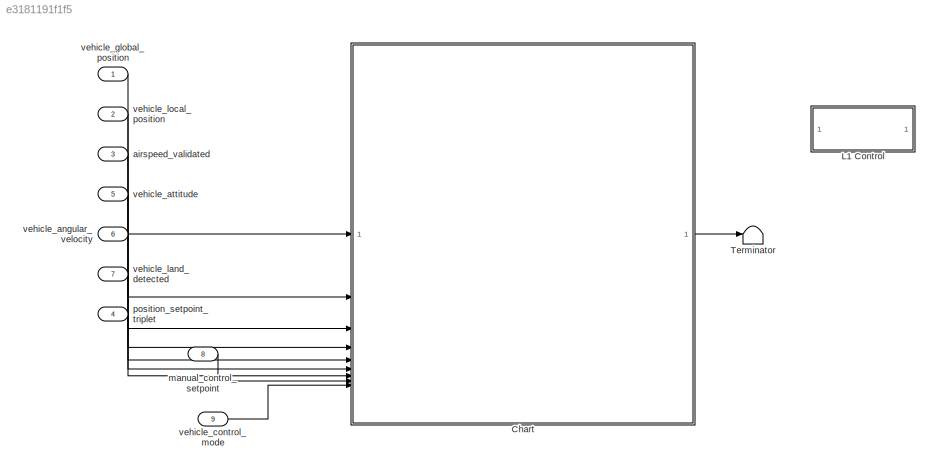
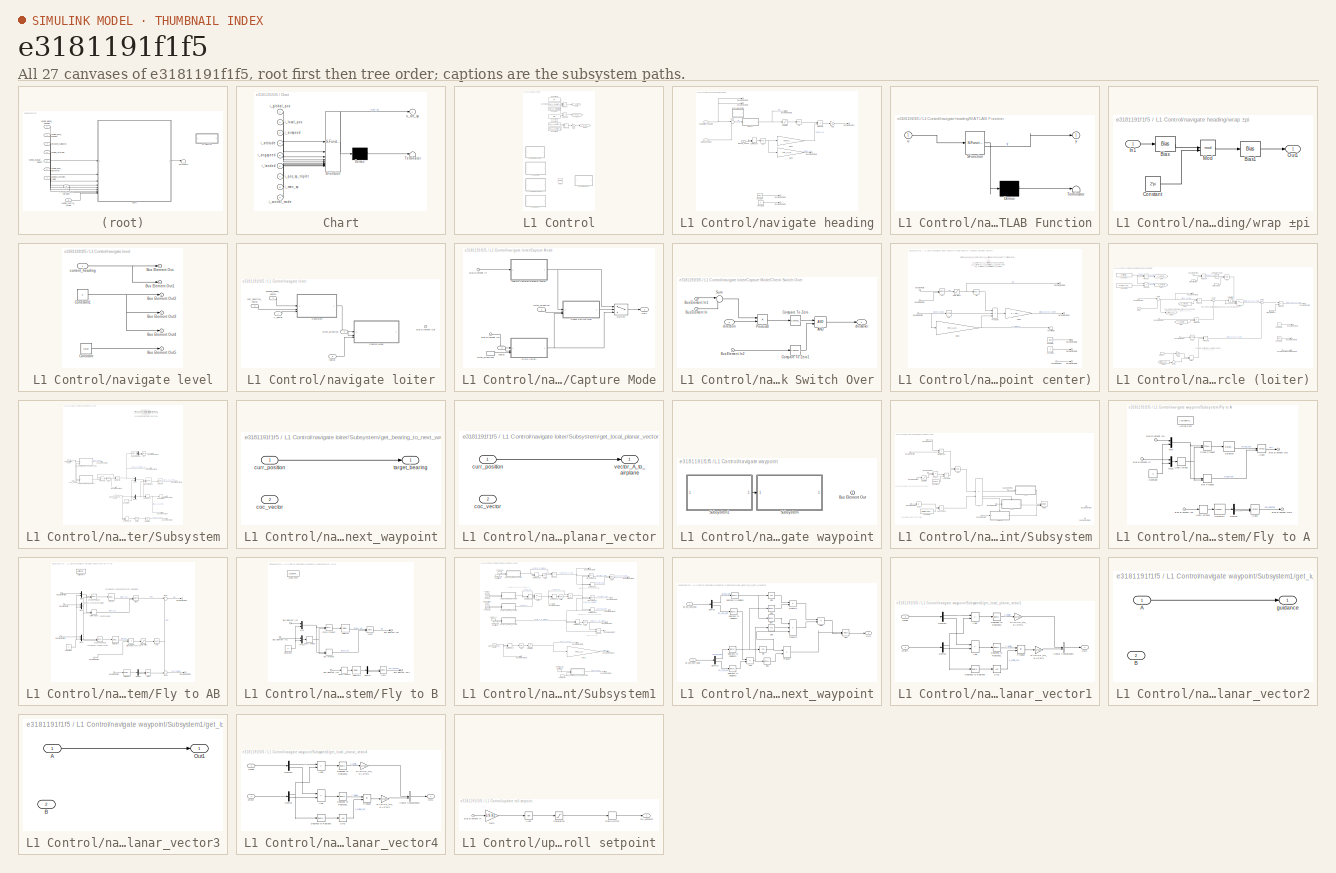
[diagram: thumbnail index - all 27 canvases of the model, root first then tree order]
MODEL slx_e3181191f1f5
KIND model
CONFIG AbsTol = auto
CONFIG EnableMultiTasking = off
CONFIG FixedStep = auto
CONFIG MaxStep = auto
CONFIG MinStep = auto
CONFIG RelTol = 1e-3
CONFIG SampleTimeConstraint = Unconstrained
CONFIG SolverName = VariableStepAuto
CONFIG StartTime = 0.0
CONFIG StopTime = 10.0
BLOCK [SubSystem] Chart
  ErrorFcn = Stateflow.Translate.translate
  PermitHierarchicalResolution = ExplicitOnly
  SFBlockType = Chart
  TreatAsAtomicUnit = on
BLOCK [Demux] Chart/ Demux 
  Outputs = 1
BLOCK [S-Function] Chart/ SFunction 
  EnableBusSupport = on
  FunctionName = sf_sfun
  Parameters = FW_AIRSPD_MIN,FW_ARSP_MODE,FW_CLMBOUT_DIFF,FW_POSCTL_INV_ST,FW_PSP_OFF,NAV_LOITER_RAD,RWTO_AIRSPD_SCL,RWTO_HDG,RWTO_MAX_THR,RWTO_NAV_ALT,RWTO_PSP,RWTO_RAMP_TIME,RWTO_TKOFF,VEHICLE_ATTITUDE_SETPOINT_INIT
  PortCounts = [9 2]
  SFcnIsStateOwnerBlock = off
  SFunctionDeploymentMode = off
  Tag = Stateflow S-Function 3
BLOCK [Terminator] Chart/ Terminator 
BLOCK [Inport] Chart/i_airspeed
  Port = 3
BLOCK [Inport] Chart/i_angspeed
  Port = 5
BLOCK [Inport] Chart/i_attitude
  Port = 4
BLOCK [Inport] Chart/i_control_mode
  Port = 9
BLOCK [Inport] Chart/i_global_pos
BLOCK [Inport] Chart/i_landed
  Port = 6
BLOCK [Inport] Chart/i_local_pos
  Port = 2
BLOCK [Inport] Chart/i_man_sp
  Port = 8
BLOCK [Inport] Chart/i_pos_sp_triplet
  Port = 7
BLOCK [Outport] Chart/o_att_sp
BLOCK [SubSystem] L1 Control
  Commented = on
BLOCK [Constant] L1 Control/Constant
  Value = FW_L1_PERIOD
BLOCK [Constant] L1 Control/Constant1
  Value = FW_L1_DAMPING
BLOCK [Constant] L1 Control/Constant2
  Value = pi
BLOCK [Constant] L1 Control/Constant3
  Value = 2*pi
BLOCK [Constant] L1 Control/Constant4
  Value = FW_L1_DAMPING
BLOCK [Constant] L1 Control/Constant5
  Value = FW_L1_DAMPING
BLOCK [Gain] L1 Control/Gain
  Gain = 4
BLOCK [Goto] L1 Control/Goto
  GotoTag = L1_ratio
  TagVisibility = global
BLOCK [Goto] L1 Control/Goto1
  GotoTag = heading_omega
BLOCK [Goto] L1 Control/Goto2
  GotoTag = K_L1
BLOCK [Merge] L1 Control/Merge
  Inputs = 4
BLOCK [Product] L1 Control/Product
  Inputs = /**
BLOCK [Product] L1 Control/Product1
  Inputs = /*
BLOCK [Product] L1 Control/Product2
BLOCK [SubSystem] L1 Control/navigate heading
BLOCK [Outport] L1 Control/navigate heading/Bus Element Out
BLOCK [Outport] L1 Control/navigate heading/Bus Element Out1
BLOCK [Outport] L1 Control/navigate heading/Bus Element Out2
BLOCK [Outport] L1 Control/navigate heading/Bus Element Out3
BLOCK [Outport] L1 Control/navigate heading/Bus Element Out4
BLOCK [Outport] L1 Control/navigate heading/Bus Element Out5
BLOCK [Outport] L1 Control/navigate heading/Bus Element Out6
BLOCK [Constant] L1 Control/navigate heading/Constant
  Value = false
BLOCK [Constant] L1 Control/navigate heading/Constant1
  Value = 0
BLOCK [DotProduct] L1 Control/navigate heading/Dot Product
  OutDataTypeStr = Inherit: Inherit via internal rule
BLOCK [Gain] L1 Control/navigate heading/Gain
  Gain = 2
BLOCK [Gain] L1 Control/navigate heading/Gain1
  Gain = sqrt(2)*pi/FW_L1_PERIOD
BLOCK [Gain] L1 Control/navigate heading/Gain2
  Gain = FW_L1_PERIOD/(sqrt(2)*pi)
BLOCK [SubSystem] L1 Control/navigate heading/MATLAB Function
  ErrorFcn = Stateflow.Translate.translate
  PermitHierarchicalResolution = ExplicitOnly
  SFBlockType = MATLAB Function
  TreatAsAtomicUnit = on
BLOCK [Demux] L1 Control/navigate heading/MATLAB Function/ Demux 
  Outputs = 1
BLOCK [S-Function] L1 Control/navigate heading/MATLAB Function/ SFunction 
  EnableBusSupport = off
  FunctionName = sf_sfun
  PortCounts = [1 2]
  SFcnIsStateOwnerBlock = off
  SFunctionDeploymentMode = off
  Tag = Stateflow S-Function 2
BLOCK [Terminator] L1 Control/navigate heading/MATLAB Function/ Terminator 
BLOCK [Inport] L1 Control/navigate heading/MATLAB Function/u
BLOCK [Outport] L1 Control/navigate heading/MATLAB Function/y
BLOCK [Product] L1 Control/navigate heading/Product2
BLOCK [Saturate] L1 Control/navigate heading/Saturation
  AttributesFormatString = [%<LowerLimit>,%<UpperLimit>]
  LowerLimit = -pi/2
  UpperLimit = pi/2
BLOCK [Trigonometry] L1 Control/navigate heading/Sin
BLOCK [Sqrt] L1 Control/navigate heading/Sqrt
BLOCK [Sum] L1 Control/navigate heading/Sum
  Inputs = |+-
BLOCK [Inport] L1 Control/navigate heading/current_heading
  Port = 2
BLOCK [Inport] L1 Control/navigate heading/ground_speed
  Port = 3
BLOCK [Inport] L1 Control/navigate heading/navigation_heading
BLOCK [SubSystem] L1 Control/navigate heading/wrap ±pi
BLOCK [Bias] L1 Control/navigate heading/wrap ±pi/Bias
  Bias = pi
  SaturateOnIntegerOverflow = off
BLOCK [Bias] L1 Control/navigate heading/wrap ±pi/Bias1
  Bias = -pi
  SaturateOnIntegerOverflow = off
BLOCK [Constant] L1 Control/navigate heading/wrap ±pi/Constant
  Value = 2*pi
BLOCK [Inport] L1 Control/navigate heading/wrap ±pi/In1
BLOCK [Math] L1 Control/navigate heading/wrap ±pi/Mod
  Operator = mod
BLOCK [Outport] L1 Control/navigate heading/wrap ±pi/Out1
BLOCK [SubSystem] L1 Control/navigate level
BLOCK [Outport] L1 Control/navigate level/Bus Element Out
BLOCK [Outport] L1 Control/navigate level/Bus Element Out1
BLOCK [Outport] L1 Control/navigate level/Bus Element Out2
BLOCK [Outport] L1 Control/navigate level/Bus Element Out3
BLOCK [Outport] L1 Control/navigate level/Bus Element Out4
BLOCK [Outport] L1 Control/navigate level/Bus Element Out5
BLOCK [Constant] L1 Control/navigate level/Constant
  Value = false
BLOCK [Constant] L1 Control/navigate level/Constant1
  Value = 0
BLOCK [Inport] L1 Control/navigate level/current_heading
BLOCK [SubSystem] L1 Control/navigate loiter
BLOCK [Inport] L1 Control/navigate loiter/A_vector
  NameLocation = left
BLOCK [Outport] L1 Control/navigate loiter/Bus Element Out
BLOCK [SubSystem] L1 Control/navigate loiter/Capture Mode
BLOCK [Inport] L1 Control/navigate loiter/Capture Mode/Bus Element In
BLOCK [Inport] L1 Control/navigate loiter/Capture Mode/Bus Element In1
BLOCK [SubSystem] L1 Control/navigate loiter/Capture Mode/Check Switch Over
BLOCK [Logic] L1 Control/navigate loiter/Capture Mode/Check Switch Over/AND
  AllPortsSameDT = off
  IconShape = distinctive
  OutDataTypeStr = boolean
BLOCK [Inport] L1 Control/navigate loiter/Capture Mode/Check Switch Over/Bus Element In
BLOCK [Inport] L1 Control/navigate loiter/Capture Mode/Check Switch Over/Bus Element In1
  Port = 3
BLOCK [Inport] L1 Control/navigate loiter/Capture Mode/Check Switch Over/Bus Element In2
  Port = 3
BLOCK [Reference] L1 Control/navigate loiter/Capture Mode/Check Switch Over/Compare To Zero  REF=simulink/Logic and Bit
Operations/Compare
To Zero
  SourceBlock = simulink/Logic and Bit\nOperations/Compare\nTo Zero
  SourceType = Compare To Zero
BLOCK [Reference] L1 Control/navigate loiter/Capture Mode/Check Switch Over/Compare To Zero1  REF=simulink/Logic and Bit
Operations/Compare
To Zero
  SourceBlock = simulink/Logic and Bit\nOperations/Compare\nTo Zero
  SourceType = Compare To Zero
BLOCK [Product] L1 Control/navigate loiter/Capture Mode/Check Switch Over/Product8
BLOCK [Sum] L1 Control/navigate loiter/Capture Mode/Check Switch Over/Sum
  Inputs = |+-
BLOCK [Outport] L1 Control/navigate loiter/Capture Mode/Check Switch Over/checkover
BLOCK [Inport] L1 Control/navigate loiter/Capture Mode/Check Switch Over/direction
  NameLocation = left
  Port = 2
BLOCK [Outport] L1 Control/navigate loiter/Capture Mode/Out1
BLOCK [Switch] L1 Control/navigate loiter/Capture Mode/Switch
  Criteria = u2 > Threshold
  InputSameDT = off
  SaturateOnIntegerOverflow = off
BLOCK [SubSystem] L1 Control/navigate loiter/Capture Mode/capture (towards waypoint center)
BLOCK [Trigonometry] L1 Control/navigate loiter/Capture Mode/capture (towards waypoint center)/Atan
  Operator = atan2
BLOCK [Inport] L1 Control/navigate loiter/Capture Mode/capture (towards waypoint center)/Bus Element In
BLOCK [Inport] L1 Control/navigate loiter/Capture Mode/capture (towards waypoint center)/Bus Element In1
BLOCK [Inport] L1 Control/navigate loiter/Capture Mode/capture (towards waypoint center)/Bus Element In2
BLOCK [Inport] L1 Control/navigate loiter/Capture Mode/capture (towards waypoint center)/Bus Element In3
BLOCK [Outport] L1 Control/navigate loiter/Capture Mode/capture (towards waypoint center)/Bus Element Out1
BLOCK [Outport] L1 Control/navigate loiter/Capture Mode/capture (towards waypoint center)/Bus Element Out2
BLOCK [Outport] L1 Control/navigate loiter/Capture Mode/capture (towards waypoint center)/Bus Element Out4
BLOCK [Outport] L1 Control/navigate loiter/Capture Mode/capture (towards waypoint center)/Bus Element Out5
BLOCK [Outport] L1 Control/navigate loiter/Capture Mode/capture (towards waypoint center)/Bus Element Out6
BLOCK [Constant] L1 Control/navigate loiter/Capture Mode/capture (towards waypoint center)/Constant
  Value = false
BLOCK [Constant] L1 Control/navigate loiter/Capture Mode/capture (towards waypoint center)/Constant1
  Value = 0
BLOCK [Gain] L1 Control/navigate loiter/Capture Mode/capture (towards waypoint center)/Gain2
  Gain = FW_L1_DAMPING * FW_L1_PERIOD / pi
BLOCK [Gain] L1 Control/navigate loiter/Capture Mode/capture (towards waypoint center)/Gain3
  Gain = 4 * FW_L1_DAMPING^2
BLOCK [Math] L1 Control/navigate loiter/Capture Mode/capture (towards waypoint center)/Pow
  Operator = square
  RndMeth = Zero
  SignedPower = on
BLOCK [Product] L1 Control/navigate loiter/Capture Mode/capture (towards waypoint center)/Product6
  Inputs = **/
BLOCK [Saturate] L1 Control/navigate loiter/Capture Mode/capture (towards waypoint center)/Saturation1
  AttributesFormatString = [%<LowerLimit>,%<UpperLimit>]
  LowerLimit = -single(pi/2)
  UpperLimit = single(pi/2)
BLOCK [Trigonometry] L1 Control/navigate loiter/Capture Mode/capture (towards waypoint center)/Sin
BLOCK [Terminator] L1 Control/navigate loiter/Capture Mode/capture (towards waypoint center)/Terminator
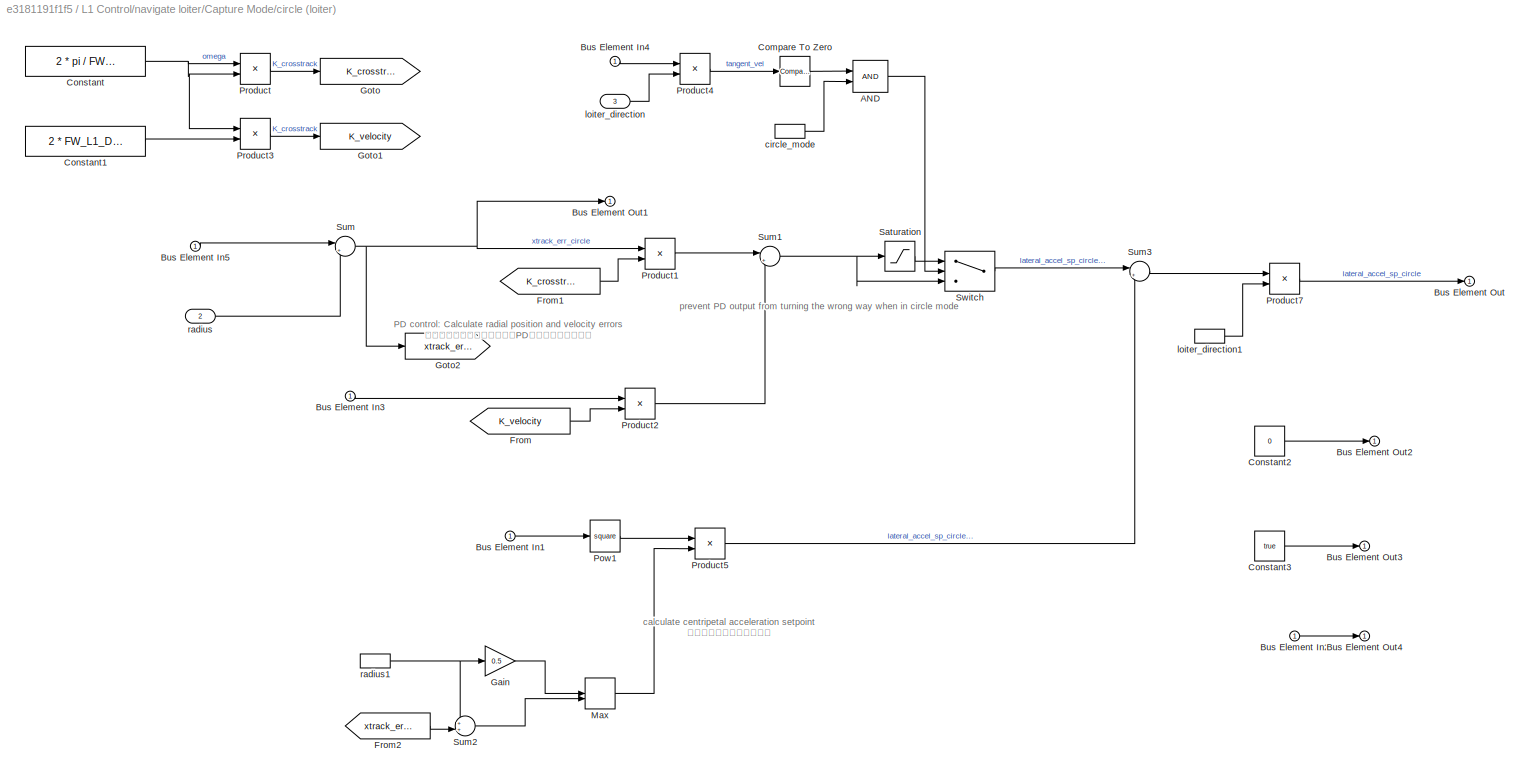
BLOCK [SubSystem] L1 Control/navigate loiter/Capture Mode/circle (loiter)
BLOCK [Logic] L1 Control/navigate loiter/Capture Mode/circle (loiter)/AND
  AllPortsSameDT = off
  IconShape = distinctive
  OutDataTypeStr = boolean
BLOCK [Inport] L1 Control/navigate loiter/Capture Mode/circle (loiter)/Bus Element In1
BLOCK [Inport] L1 Control/navigate loiter/Capture Mode/circle (loiter)/Bus Element In2
BLOCK [Inport] L1 Control/navigate loiter/Capture Mode/circle (loiter)/Bus Element In3
BLOCK [Inport] L1 Control/navigate loiter/Capture Mode/circle (loiter)/Bus Element In4
BLOCK [Inport] L1 Control/navigate loiter/Capture Mode/circle (loiter)/Bus Element In5
BLOCK [Outport] L1 Control/navigate loiter/Capture Mode/circle (loiter)/Bus Element Out
BLOCK [Outport] L1 Control/navigate loiter/Capture Mode/circle (loiter)/Bus Element Out1
BLOCK [Outport] L1 Control/navigate loiter/Capture Mode/circle (loiter)/Bus Element Out2
BLOCK [Outport] L1 Control/navigate loiter/Capture Mode/circle (loiter)/Bus Element Out3
BLOCK [Outport] L1 Control/navigate loiter/Capture Mode/circle (loiter)/Bus Element Out4
BLOCK [Reference] L1 Control/navigate loiter/Capture Mode/circle (loiter)/Compare To Zero  REF=simulink/Logic and Bit
Operations/Compare
To Zero
  SourceBlock = simulink/Logic and Bit\nOperations/Compare\nTo Zero
  SourceType = Compare To Zero
BLOCK [Constant] L1 Control/navigate loiter/Capture Mode/circle (loiter)/Constant
  Value = 2 * pi / FW_L1_PERIOD
BLOCK [Constant] L1 Control/navigate loiter/Capture Mode/circle (loiter)/Constant1
  Value = 2 * FW_L1_DAMPING
BLOCK [Constant] L1 Control/navigate loiter/Capture Mode/circle (loiter)/Constant2
  Value = 0
BLOCK [Constant] L1 Control/navigate loiter/Capture Mode/circle (loiter)/Constant3
  Value = true
BLOCK [From] L1 Control/navigate loiter/Capture Mode/circle (loiter)/From
  GotoTag = K_velocity
BLOCK [From] L1 Control/navigate loiter/Capture Mode/circle (loiter)/From1
  GotoTag = K_crosstrack
BLOCK [From] L1 Control/navigate loiter/Capture Mode/circle (loiter)/From2
  GotoTag = xtrack_err_circle
BLOCK [Gain] L1 Control/navigate loiter/Capture Mode/circle (loiter)/Gain
  Gain = 0.5
BLOCK [Goto] L1 Control/navigate loiter/Capture Mode/circle (loiter)/Goto
  GotoTag = K_crosstrack
BLOCK [Goto] L1 Control/navigate loiter/Capture Mode/circle (loiter)/Goto1
  GotoTag = K_velocity
BLOCK [Goto] L1 Control/navigate loiter/Capture Mode/circle (loiter)/Goto2
  GotoTag = xtrack_err_circle
BLOCK [MinMax] L1 Control/navigate loiter/Capture Mode/circle (loiter)/Max
  Function = max
  Inputs = 2
BLOCK [Math] L1 Control/navigate loiter/Capture Mode/circle (loiter)/Pow1
  Operator = square
  RndMeth = Zero
  SignedPower = on
BLOCK [Product] L1 Control/navigate loiter/Capture Mode/circle (loiter)/Product
BLOCK [Product] L1 Control/navigate loiter/Capture Mode/circle (loiter)/Product1
BLOCK [Product] L1 Control/navigate loiter/Capture Mode/circle (loiter)/Product2
BLOCK [Product] L1 Control/navigate loiter/Capture Mode/circle (loiter)/Product3
BLOCK [Product] L1 Control/navigate loiter/Capture Mode/circle (loiter)/Product4
BLOCK [Product] L1 Control/navigate loiter/Capture Mode/circle (loiter)/Product5
  Inputs = */
BLOCK [Product] L1 Control/navigate loiter/Capture Mode/circle (loiter)/Product7
BLOCK [Saturate] L1 Control/navigate loiter/Capture Mode/circle (loiter)/Saturation
  LowerLimit = 0
  UpperLimit = inf
BLOCK [Sum] L1 Control/navigate loiter/Capture Mode/circle (loiter)/Sum
  Inputs = |+-
BLOCK [Sum] L1 Control/navigate loiter/Capture Mode/circle (loiter)/Sum1
  Inputs = |++
BLOCK [Sum] L1 Control/navigate loiter/Capture Mode/circle (loiter)/Sum2
  Inputs = ++|
BLOCK [Sum] L1 Control/navigate loiter/Capture Mode/circle (loiter)/Sum3
  Inputs = |++
BLOCK [Switch] L1 Control/navigate loiter/Capture Mode/circle (loiter)/Switch
  Criteria = u2 > Threshold
  InputSameDT = off
  SaturateOnIntegerOverflow = off
BLOCK [InportShadow] L1 Control/navigate loiter/Capture Mode/circle (loiter)/circle_mode
  Port = 2
BLOCK [Inport] L1 Control/navigate loiter/Capture Mode/circle (loiter)/loiter_direction
  Port = 3
BLOCK [InportShadow] L1 Control/navigate loiter/Capture Mode/circle (loiter)/loiter_direction1
  Port = 3
BLOCK [Inport] L1 Control/navigate loiter/Capture Mode/circle (loiter)/radius
  Port = 2
BLOCK [InportShadow] L1 Control/navigate loiter/Capture Mode/circle (loiter)/radius1
  Port = 2
BLOCK [Inport] L1 Control/navigate loiter/Capture Mode/loiter_direction
  NameLocation = left
  Port = 2
BLOCK [InportShadow] L1 Control/navigate loiter/Capture Mode/loiter_direction1
  NameLocation = left
  Port = 2
BLOCK [Inport] L1 Control/navigate loiter/Capture Mode/radius
  NameLocation = left
  Port = 3
BLOCK [SubSystem] L1 Control/navigate loiter/Subsystem
BLOCK [Trigonometry] L1 Control/navigate loiter/Subsystem/Atan
  Operator = atan2
BLOCK [Outport] L1 Control/navigate loiter/Subsystem/Bus Element Out
BLOCK [Outport] L1 Control/navigate loiter/Subsystem/Bus Element Out1
BLOCK [Outport] L1 Control/navigate loiter/Subsystem/Bus Element Out2
BLOCK [Outport] L1 Control/navigate loiter/Subsystem/Bus Element Out3
BLOCK [Outport] L1 Control/navigate loiter/Subsystem/Bus Element Out4
BLOCK [Outport] L1 Control/navigate loiter/Subsystem/Bus Element Out5
BLOCK [Outport] L1 Control/navigate loiter/Subsystem/Bus Element Out6
BLOCK [Outport] L1 Control/navigate loiter/Subsystem/Bus Element Out7
BLOCK [Constant] L1 Control/navigate loiter/Subsystem/Constant
  OutDataTypeStr = single
  Value = 0
BLOCK [Reference] L1 Control/navigate loiter/Subsystem/Cross Product  REF=matrix_library/Cross Product
  LibrarySourceBlock = simulink/Matrix\nOperations/Cross Product
  SourceBlock = matrix_library/Cross Product
  SourceType = CrossProduct
BLOCK [Demux] L1 Control/navigate loiter/Subsystem/Demux
  Outputs = 2
BLOCK [DotProduct] L1 Control/navigate loiter/Subsystem/Dot Product
  OutDataTypeStr = Inherit: Inherit via internal rule
BLOCK [DotProduct] L1 Control/navigate loiter/Subsystem/Dot Product1
  OutDataTypeStr = Inherit: Inherit via internal rule
BLOCK [Mux] L1 Control/navigate loiter/Subsystem/Mux
  DisplayOption = bar
  Inputs = 2
BLOCK [Mux] L1 Control/navigate loiter/Subsystem/Mux1
  DisplayOption = bar
  Inputs = 2
BLOCK [Product] L1 Control/navigate loiter/Subsystem/Product2
BLOCK [Product] L1 Control/navigate loiter/Subsystem/Product3
  Inputs = */
BLOCK [Saturate] L1 Control/navigate loiter/Subsystem/Saturation
  LowerLimit = 0.1
  UpperLimit = inf
BLOCK [Selector] L1 Control/navigate loiter/Subsystem/Selector
  IndexOptions = Index vector (dialog)
  Indices = 3
  InputPortWidth = 3
  OutputSizes = 1
BLOCK [Selector] L1 Control/navigate loiter/Subsystem/Selector1
  IndexOptions = Index vector (dialog)
  Indices = [2 1]
  InputPortWidth = 2
  OutputSizes = 1
BLOCK [Sqrt] L1 Control/navigate loiter/Subsystem/Sqrt
BLOCK [Sqrt] L1 Control/navigate loiter/Subsystem/Sqrt1
BLOCK [UnaryMinus] L1 Control/navigate loiter/Subsystem/Unary Minus
BLOCK [Inport] L1 Control/navigate loiter/Subsystem/coc_vector
  Port = 3
BLOCK [Inport] L1 Control/navigate loiter/Subsystem/curr_position_vector
  Port = 2
BLOCK [SubSystem] L1 Control/navigate loiter/Subsystem/get_bearing_to_next_waypoint
BLOCK [Inport] L1 Control/navigate loiter/Subsystem/get_bearing_to_next_waypoint/coc_vector
  Port = 2
BLOCK [Inport] L1 Control/navigate loiter/Subsystem/get_bearing_to_next_waypoint/curr_position
BLOCK [Outport] L1 Control/navigate loiter/Subsystem/get_bearing_to_next_waypoint/target_bearing
BLOCK [SubSystem] L1 Control/navigate loiter/Subsystem/get_local_planar_vector
BLOCK [Inport] L1 Control/navigate loiter/Subsystem/get_local_planar_vector/coc_vector
  Port = 2
BLOCK [Inport] L1 Control/navigate loiter/Subsystem/get_local_planar_vector/curr_position
BLOCK [Outport] L1 Control/navigate loiter/Subsystem/get_local_planar_vector/vector_A_to_airplane
BLOCK [Inport] L1 Control/navigate loiter/Subsystem/ground_speed_vector
BLOCK [Inport] L1 Control/navigate loiter/curr_position_vector
  NameLocation = left
  Port = 2
BLOCK [Inport] L1 Control/navigate loiter/ground_speed_vector
  NameLocation = left
  Port = 3
BLOCK [Inport] L1 Control/navigate loiter/loiter_direction
  NameLocation = left
  Port = 4
BLOCK [Inport] L1 Control/navigate loiter/radius
  NameLocation = left
  Port = 5
BLOCK [SubSystem] L1 Control/navigate waypoint
BLOCK [Outport] L1 Control/navigate waypoint/Bus Element Out
BLOCK [SubSystem] L1 Control/navigate waypoint/Subsystem
BLOCK [Logic] L1 Control/navigate waypoint/Subsystem/AND
  AllPortsSameDT = off
  IconShape = distinctive
  OutDataTypeStr = boolean
BLOCK [Abs] L1 Control/navigate waypoint/Subsystem/Abs
  SaturateOnIntegerOverflow = off
BLOCK [Inport] L1 Control/navigate waypoint/Subsystem/Bus Element In
BLOCK [Inport] L1 Control/navigate waypoint/Subsystem/Bus Element In1
BLOCK [Inport] L1 Control/navigate waypoint/Subsystem/Bus Element In2
BLOCK [Inport] L1 Control/navigate waypoint/Subsystem/Bus Element In3
BLOCK [Inport] L1 Control/navigate waypoint/Subsystem/Bus Element In4
BLOCK [Inport] L1 Control/navigate waypoint/Subsystem/Bus Element In5
BLOCK [Inport] L1 Control/navigate waypoint/Subsystem/Bus Element In6
BLOCK [Inport] L1 Control/navigate waypoint/Subsystem/Bus Element In7
BLOCK [Outport] L1 Control/navigate waypoint/Subsystem/Bus Element Out
BLOCK [Outport] L1 Control/navigate waypoint/Subsystem/Bus Element Out1
BLOCK [Constant] L1 Control/navigate waypoint/Subsystem/Constant
  OutDataTypeStr = single
  Value = -0.7071
BLOCK [Constant] L1 Control/navigate waypoint/Subsystem/Constant1
  OutDataTypeStr = single
  Value = single(100*pi/1/80)
BLOCK [SubSystem] L1 Control/navigate waypoint/Subsystem/Fly to A
  TreatAsAtomicUnit = on
BLOCK [ActionPort] L1 Control/navigate waypoint/Subsystem/Fly to A/Action Port
  ActionPortLabel = if(u1)
BLOCK [Trigonometry] L1 Control/navigate waypoint/Subsystem/Fly to A/Atan1
  Operator = atan2
BLOCK [Trigonometry] L1 Control/navigate waypoint/Subsystem/Fly to A/Atan2
  Operator = atan2
BLOCK [Inport] L1 Control/navigate waypoint/Subsystem/Fly to A/Bus Element In
BLOCK [Inport] L1 Control/navigate waypoint/Subsystem/Fly to A/Bus Element In1
BLOCK [Inport] L1 Control/navigate waypoint/Subsystem/Fly to A/Bus Element In2
BLOCK [Outport] L1 Control/navigate waypoint/Subsystem/Fly to A/Bus Element Out
BLOCK [Outport] L1 Control/navigate waypoint/Subsystem/Fly to A/Bus Element Out1
BLOCK [Constant] L1 Control/navigate waypoint/Subsystem/Fly to A/Constant
  Value = 0
BLOCK [Reference] L1 Control/navigate waypoint/Subsystem/Fly to A/Cross Product  REF=matrix_library/Cross Product
  SourceBlock = matrix_library/Cross Product
  SourceType = CrossProduct
BLOCK [Demux] L1 Control/navigate waypoint/Subsystem/Fly to A/Demux
  Outputs = 2
BLOCK [DotProduct] L1 Control/navigate waypoint/Subsystem/Fly to A/Dot Product
  OutDataTypeStr = Inherit: Inherit via internal rule
BLOCK [Mux] L1 Control/navigate waypoint/Subsystem/Fly to A/Mux
  DisplayOption = bar
  Inputs = 2
BLOCK [Mux] L1 Control/navigate waypoint/Subsystem/Fly to A/Mux1
  DisplayOption = bar
  Inputs = 2
BLOCK [Selector] L1 Control/navigate waypoint/Subsystem/Fly to A/Selector
  IndexOptions = Index vector (dialog)
  Indices = 3
  InputPortWidth = 3
  OutputSizes = 1
BLOCK [Selector] L1 Control/navigate waypoint/Subsystem/Fly to A/Selector1
  IndexOptions = Index vector (dialog)
  Indices = [2 1]
  InputPortWidth = 2
  OutputSizes = 1
BLOCK [UnaryMinus] L1 Control/navigate waypoint/Subsystem/Fly to A/Unary Minus
BLOCK [UnaryMinus] L1 Control/navigate waypoint/Subsystem/Fly to A/Unary Minus1
BLOCK [SubSystem] L1 Control/navigate waypoint/Subsystem/Fly to AB
  TreatAsAtomicUnit = on
BLOCK [ActionPort] L1 Control/navigate waypoint/Subsystem/Fly to AB/Action Port
  ActionPortLabel = else
BLOCK [Trigonometry] L1 Control/navigate waypoint/Subsystem/Fly to AB/Asin
  Operator = asin
BLOCK [Trigonometry] L1 Control/navigate waypoint/Subsystem/Fly to AB/Atan1
  Operator = atan2
BLOCK [Trigonometry] L1 Control/navigate waypoint/Subsystem/Fly to AB/Atan2
  Operator = atan2
BLOCK [Inport] L1 Control/navigate waypoint/Subsystem/Fly to AB/Bus Element In
BLOCK [Inport] L1 Control/navigate waypoint/Subsystem/Fly to AB/Bus Element In1
BLOCK [Inport] L1 Control/navigate waypoint/Subsystem/Fly to AB/Bus Element In2
BLOCK [Inport] L1 Control/navigate waypoint/Subsystem/Fly to AB/Bus Element In3
BLOCK [Inport] L1 Control/navigate waypoint/Subsystem/Fly to AB/Bus Element In4
BLOCK [Outport] L1 Control/navigate waypoint/Subsystem/Fly to AB/Bus Element Out
BLOCK [Outport] L1 Control/navigate waypoint/Subsystem/Fly to AB/Bus Element Out1
BLOCK [Constant] L1 Control/navigate waypoint/Subsystem/Fly to AB/Constant
  Value = 0
BLOCK [Reference] L1 Control/navigate waypoint/Subsystem/Fly to AB/Cross Product  REF=matrix_library/Cross Product
  SourceBlock = matrix_library/Cross Product
  SourceType = CrossProduct
BLOCK [Reference] L1 Control/navigate waypoint/Subsystem/Fly to AB/Cross Product1  REF=matrix_library/Cross Product
  SourceBlock = matrix_library/Cross Product
  SourceType = CrossProduct
BLOCK [Demux] L1 Control/navigate waypoint/Subsystem/Fly to AB/Demux
  Outputs = 2
BLOCK [DotProduct] L1 Control/navigate waypoint/Subsystem/Fly to AB/Dot Product
  OutDataTypeStr = Inherit: Inherit via internal rule
BLOCK [Mux] L1 Control/navigate waypoint/Subsystem/Fly to AB/Mux
  DisplayOption = bar
  Inputs = 2
BLOCK [Mux] L1 Control/navigate waypoint/Subsystem/Fly to AB/Mux1
  DisplayOption = bar
  Inputs = 2
BLOCK [Mux] L1 Control/navigate waypoint/Subsystem/Fly to AB/Mux2
  DisplayOption = bar
  Inputs = 2
BLOCK [Product] L1 Control/navigate waypoint/Subsystem/Fly to AB/Product
  Inputs = */
BLOCK [Saturate] L1 Control/navigate waypoint/Subsystem/Fly to AB/Saturation
  LowerLimit = -sin(pi/4)
  UpperLimit = sin(pi/4)
BLOCK [Selector] L1 Control/navigate waypoint/Subsystem/Fly to AB/Selector
  IndexOptions = Index vector (dialog)
  Indices = 3
  InputPortWidth = 3
  OutputSizes = 1
BLOCK [Selector] L1 Control/navigate waypoint/Subsystem/Fly to AB/Selector1
  IndexOptions = Index vector (dialog)
  Indices = 3
  InputPortWidth = 3
  OutputSizes = 1
BLOCK [Selector] L1 Control/navigate waypoint/Subsystem/Fly to AB/Selector2
  IndexOptions = Index vector (dialog)
  Indices = [2 1]
  InputPortWidth = 2
  OutputSizes = 1
BLOCK [Sum] L1 Control/navigate waypoint/Subsystem/Fly to AB/Sum
  Inputs = |++
BLOCK [Sum] L1 Control/navigate waypoint/Subsystem/Fly to AB/Sum1
  Inputs = ++|
BLOCK [SubSystem] L1 Control/navigate waypoint/Subsystem/Fly to B
  TreatAsAtomicUnit = on
BLOCK [ActionPort] L1 Control/navigate waypoint/Subsystem/Fly to B/Action Port
  ActionPortLabel = elseif(..)
BLOCK [Trigonometry] L1 Control/navigate waypoint/Subsystem/Fly to B/Atan1
  Operator = atan2
BLOCK [Trigonometry] L1 Control/navigate waypoint/Subsystem/Fly to B/Atan2
  Operator = atan2
BLOCK [Inport] L1 Control/navigate waypoint/Subsystem/Fly to B/Bus Element In1
BLOCK [Inport] L1 Control/navigate waypoint/Subsystem/Fly to B/Bus Element In2
BLOCK [Inport] L1 Control/navigate waypoint/Subsystem/Fly to B/Bus Element In3
BLOCK [Outport] L1 Control/navigate waypoint/Subsystem/Fly to B/Bus Element Out
BLOCK [Outport] L1 Control/navigate waypoint/Subsystem/Fly to B/Bus Element Out1
BLOCK [Constant] L1 Control/navigate waypoint/Subsystem/Fly to B/Constant
  Value = 0
BLOCK [Reference] L1 Control/navigate waypoint/Subsystem/Fly to B/Cross Product  REF=matrix_library/Cross Product
  SourceBlock = matrix_library/Cross Product
  SourceType = CrossProduct
BLOCK [Demux] L1 Control/navigate waypoint/Subsystem/Fly to B/Demux
  Outputs = 2
BLOCK [DotProduct] L1 Control/navigate waypoint/Subsystem/Fly to B/Dot Product
  OutDataTypeStr = Inherit: Inherit via internal rule
BLOCK [Mux] L1 Control/navigate waypoint/Subsystem/Fly to B/Mux
  DisplayOption = bar
  Inputs = 2
BLOCK [Mux] L1 Control/navigate waypoint/Subsystem/Fly to B/Mux1
  DisplayOption = bar
  Inputs = 2
BLOCK [Selector] L1 Control/navigate waypoint/Subsystem/Fly to B/Selector
  IndexOptions = Index vector (dialog)
  Indices = 3
  InputPortWidth = 3
  OutputSizes = 1
BLOCK [Selector] L1 Control/navigate waypoint/Subsystem/Fly to B/Selector1
  IndexOptions = Index vector (dialog)
  Indices = [2 1]
  InputPortWidth = 2
  OutputSizes = 1
BLOCK [UnaryMinus] L1 Control/navigate waypoint/Subsystem/Fly to B/Unary Minus
BLOCK [UnaryMinus] L1 Control/navigate waypoint/Subsystem/Fly to B/Unary Minus1
BLOCK [RelationalOperator] L1 Control/navigate waypoint/Subsystem/GreaterThan
  InputSameDT = off
  Operator = >
  OutDataTypeStr = boolean
  RndMeth = Simplest
BLOCK [If] L1 Control/navigate waypoint/Subsystem/If
  ElseIfExpressions = u2
  IfExpression = u1
  NumInputs = 2
BLOCK [RelationalOperator] L1 Control/navigate waypoint/Subsystem/Less Than
  InputSameDT = off
  Operator = <
  OutDataTypeStr = boolean
  RndMeth = Simplest
BLOCK [RelationalOperator] L1 Control/navigate waypoint/Subsystem/Less Than1
  InputSameDT = off
  Operator = <
  OutDataTypeStr = boolean
  RndMeth = Simplest
BLOCK [Merge] L1 Control/navigate waypoint/Subsystem/Merge
  Inputs = 3
BLOCK [Product] L1 Control/navigate waypoint/Subsystem/Product
  Inputs = */
BLOCK [Saturate] L1 Control/navigate waypoint/Subsystem/Saturation
  LowerLimit = 1
  UpperLimit = inf
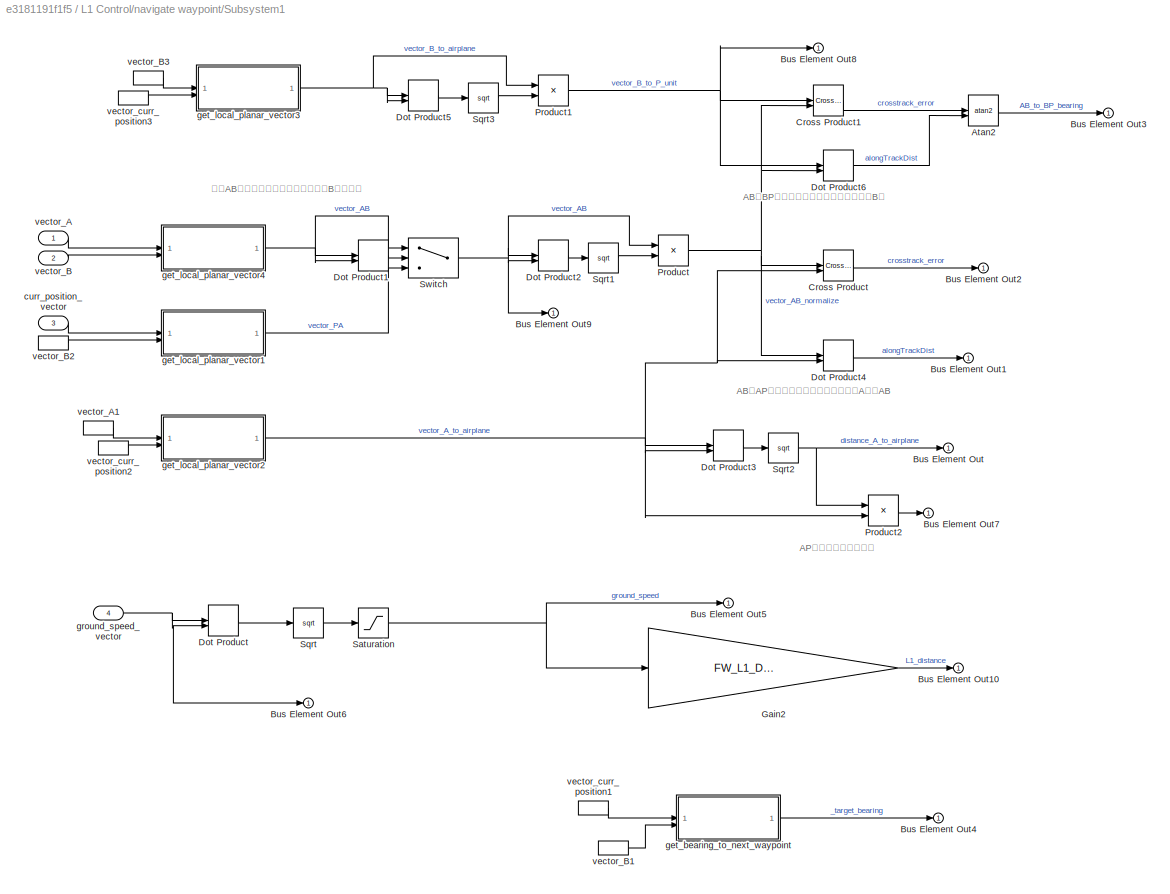
BLOCK [SubSystem] L1 Control/navigate waypoint/Subsystem1
BLOCK [Trigonometry] L1 Control/navigate waypoint/Subsystem1/Atan2
  Operator = atan2
BLOCK [Outport] L1 Control/navigate waypoint/Subsystem1/Bus Element Out
BLOCK [Outport] L1 Control/navigate waypoint/Subsystem1/Bus Element Out1
BLOCK [Outport] L1 Control/navigate waypoint/Subsystem1/Bus Element Out10
BLOCK [Outport] L1 Control/navigate waypoint/Subsystem1/Bus Element Out2
BLOCK [Outport] L1 Control/navigate waypoint/Subsystem1/Bus Element Out3
BLOCK [Outport] L1 Control/navigate waypoint/Subsystem1/Bus Element Out4
BLOCK [Outport] L1 Control/navigate waypoint/Subsystem1/Bus Element Out5
BLOCK [Outport] L1 Control/navigate waypoint/Subsystem1/Bus Element Out6
BLOCK [Outport] L1 Control/navigate waypoint/Subsystem1/Bus Element Out7
BLOCK [Outport] L1 Control/navigate waypoint/Subsystem1/Bus Element Out8
BLOCK [Outport] L1 Control/navigate waypoint/Subsystem1/Bus Element Out9
BLOCK [Reference] L1 Control/navigate waypoint/Subsystem1/Cross Product  REF=matrix_library/Cross Product
  SourceBlock = matrix_library/Cross Product
  SourceType = CrossProduct
BLOCK [Reference] L1 Control/navigate waypoint/Subsystem1/Cross Product1  REF=matrix_library/Cross Product
  SourceBlock = matrix_library/Cross Product
  SourceType = CrossProduct
BLOCK [DotProduct] L1 Control/navigate waypoint/Subsystem1/Dot Product
  OutDataTypeStr = Inherit: Inherit via internal rule
BLOCK [DotProduct] L1 Control/navigate waypoint/Subsystem1/Dot Product1
  OutDataTypeStr = Inherit: Inherit via internal rule
BLOCK [DotProduct] L1 Control/navigate waypoint/Subsystem1/Dot Product2
  OutDataTypeStr = Inherit: Inherit via internal rule
BLOCK [DotProduct] L1 Control/navigate waypoint/Subsystem1/Dot Product3
  OutDataTypeStr = Inherit: Inherit via internal rule
BLOCK [DotProduct] L1 Control/navigate waypoint/Subsystem1/Dot Product4
  OutDataTypeStr = Inherit: Inherit via internal rule
BLOCK [DotProduct] L1 Control/navigate waypoint/Subsystem1/Dot Product5
  OutDataTypeStr = Inherit: Inherit via internal rule
BLOCK [DotProduct] L1 Control/navigate waypoint/Subsystem1/Dot Product6
  OutDataTypeStr = Inherit: Inherit via internal rule
BLOCK [Gain] L1 Control/navigate waypoint/Subsystem1/Gain2
  Gain = FW_L1_DAMPING * FW_L1_PERIOD / pi
BLOCK [Product] L1 Control/navigate waypoint/Subsystem1/Product
  Inputs = */
BLOCK [Product] L1 Control/navigate waypoint/Subsystem1/Product1
  Inputs = */
BLOCK [Product] L1 Control/navigate waypoint/Subsystem1/Product2
  Inputs = /*
BLOCK [Saturate] L1 Control/navigate waypoint/Subsystem1/Saturation
  LowerLimit = 0.1
  UpperLimit = inf
BLOCK [Sqrt] L1 Control/navigate waypoint/Subsystem1/Sqrt
BLOCK [Sqrt] L1 Control/navigate waypoint/Subsystem1/Sqrt1
BLOCK [Sqrt] L1 Control/navigate waypoint/Subsystem1/Sqrt2
BLOCK [Sqrt] L1 Control/navigate waypoint/Subsystem1/Sqrt3
BLOCK [Switch] L1 Control/navigate waypoint/Subsystem1/Switch
  Criteria = u2 > Threshold
  InputSameDT = off
  SaturateOnIntegerOverflow = off
  Threshold = 1e-6
BLOCK [Inport] L1 Control/navigate waypoint/Subsystem1/curr_position_vector
  NameLocation = left
  Port = 3
BLOCK [SubSystem] L1 Control/navigate waypoint/Subsystem1/get_bearing_to_next_waypoint
BLOCK [Sum] L1 Control/navigate waypoint/Subsystem1/get_bearing_to_next_waypoint/Add
  IconShape = rectangular
  Inputs = -+
BLOCK [Sum] L1 Control/navigate waypoint/Subsystem1/get_bearing_to_next_waypoint/Add1
  IconShape = rectangular
  Inputs = +-
BLOCK [Reference] L1 Control/navigate waypoint/Subsystem1/get_bearing_to_next_waypoint/Degrees to Radians  REF=simulink_extras/Transformations/Degrees to
Radians
  SourceBlock = simulink_extras/Transformations/Degrees to\nRadians
  SourceType = DegreesToRadians
BLOCK [Reference] L1 Control/navigate waypoint/Subsystem1/get_bearing_to_next_waypoint/Degrees to Radians1  REF=simulink_extras/Transformations/Degrees to
Radians
  SourceBlock = simulink_extras/Transformations/Degrees to\nRadians
  SourceType = DegreesToRadians
BLOCK [Reference] L1 Control/navigate waypoint/Subsystem1/get_bearing_to_next_waypoint/Degrees to Radians2  REF=simulink_extras/Transformations/Degrees to
Radians
  SourceBlock = simulink_extras/Transformations/Degrees to\nRadians
  SourceType = DegreesToRadians
BLOCK [Reference] L1 Control/navigate waypoint/Subsystem1/get_bearing_to_next_waypoint/Degrees to Radians3  REF=simulink_extras/Transformations/Degrees to
Radians
  SourceBlock = simulink_extras/Transformations/Degrees to\nRadians
  SourceType = DegreesToRadians
BLOCK [Demux] L1 Control/navigate waypoint/Subsystem1/get_bearing_to_next_waypoint/Demux
  Outputs = 2
BLOCK [Demux] L1 Control/navigate waypoint/Subsystem1/get_bearing_to_next_waypoint/Demux1
  Outputs = 2
BLOCK [Outport] L1 Control/navigate waypoint/Subsystem1/get_bearing_to_next_waypoint/Out1
BLOCK [Product] L1 Control/navigate waypoint/Subsystem1/get_bearing_to_next_waypoint/Product
BLOCK [Product] L1 Control/navigate waypoint/Subsystem1/get_bearing_to_next_waypoint/Product1
BLOCK [Product] L1 Control/navigate waypoint/Subsystem1/get_bearing_to_next_waypoint/Product2
  Inputs = 3
BLOCK [Trigonometry] L1 Control/navigate waypoint/Subsystem1/get_bearing_to_next_waypoint/Sin
  Operator = cos
BLOCK [Trigonometry] L1 Control/navigate waypoint/Subsystem1/get_bearing_to_next_waypoint/Sin1
BLOCK [Trigonometry] L1 Control/navigate waypoint/Subsystem1/get_bearing_to_next_waypoint/Sin2
  Operator = cos
BLOCK [Trigonometry] L1 Control/navigate waypoint/Subsystem1/get_bearing_to_next_waypoint/Sin3
BLOCK [Trigonometry] L1 Control/navigate waypoint/Subsystem1/get_bearing_to_next_waypoint/Sin4
BLOCK [Trigonometry] L1 Control/navigate waypoint/Subsystem1/get_bearing_to_next_waypoint/Sin5
  Operator = cos
BLOCK [Trigonometry] L1 Control/navigate waypoint/Subsystem1/get_bearing_to_next_waypoint/Sin6
  Operator = atan2
BLOCK [Inport] L1 Control/navigate waypoint/Subsystem1/get_bearing_to_next_waypoint/lat_lon_next_degt
  Port = 2
BLOCK [Inport] L1 Control/navigate waypoint/Subsystem1/get_bearing_to_next_waypoint/lat_lon_now_deg
BLOCK [SubSystem] L1 Control/navigate waypoint/Subsystem1/get_local_planar_vector1
BLOCK [Sum] L1 Control/navigate waypoint/Subsystem1/get_local_planar_vector1/Add
  IconShape = rectangular
  Inputs = +-
BLOCK [Sum] L1 Control/navigate waypoint/Subsystem1/get_local_planar_vector1/Add1
  IconShape = rectangular
  Inputs = +-
BLOCK [Reference] L1 Control/navigate waypoint/Subsystem1/get_local_planar_vector1/Degrees to Radians  REF=simulink_extras/Transformations/Degrees to
Radians
  SourceBlock = simulink_extras/Transformations/Degrees to\nRadians
  SourceType = DegreesToRadians
BLOCK [Reference] L1 Control/navigate waypoint/Subsystem1/get_local_planar_vector1/Degrees to Radians1  REF=simulink_extras/Transformations/Degrees to
Radians
  SourceBlock = simulink_extras/Transformations/Degrees to\nRadians
  SourceType = DegreesToRadians
BLOCK [Reference] L1 Control/navigate waypoint/Subsystem1/get_local_planar_vector1/Degrees to Radians2  REF=simulink_extras/Transformations/Degrees to
Radians
  SourceBlock = simulink_extras/Transformations/Degrees to\nRadians
  SourceType = DegreesToRadians
BLOCK [Demux] L1 Control/navigate waypoint/Subsystem1/get_local_planar_vector1/Demux
  Outputs = 2
BLOCK [Demux] L1 Control/navigate waypoint/Subsystem1/get_local_planar_vector1/Demux1
  Outputs = 2
BLOCK [Outport] L1 Control/navigate waypoint/Subsystem1/get_local_planar_vector1/Out1
BLOCK [Product] L1 Control/navigate waypoint/Subsystem1/get_local_planar_vector1/Product
BLOCK [Gain] L1 Control/navigate waypoint/Subsystem1/get_local_planar_vector1/RADIUS_OF_EARTH1
  Gain = 6371000
  NameLocation = right
BLOCK [Gain] L1 Control/navigate waypoint/Subsystem1/get_local_planar_vector1/RADIUS_OF_EARTH2
  Gain = 6371000
BLOCK [Trigonometry] L1 Control/navigate waypoint/Subsystem1/get_local_planar_vector1/Sin2
  Operator = cos
BLOCK [Concatenate] L1 Control/navigate waypoint/Subsystem1/get_local_planar_vector1/Vector Concatenate
BLOCK [Inport] L1 Control/navigate waypoint/Subsystem1/get_local_planar_vector1/origin
BLOCK [Inport] L1 Control/navigate waypoint/Subsystem1/get_local_planar_vector1/target
  Port = 2
BLOCK [SubSystem] L1 Control/navigate waypoint/Subsystem1/get_local_planar_vector2
BLOCK [Inport] L1 Control/navigate waypoint/Subsystem1/get_local_planar_vector2/A
BLOCK [Inport] L1 Control/navigate waypoint/Subsystem1/get_local_planar_vector2/B
  Port = 2
BLOCK [Outport] L1 Control/navigate waypoint/Subsystem1/get_local_planar_vector2/guidance
BLOCK [SubSystem] L1 Control/navigate waypoint/Subsystem1/get_local_planar_vector3
BLOCK [Inport] L1 Control/navigate waypoint/Subsystem1/get_local_planar_vector3/A
BLOCK [Inport] L1 Control/navigate waypoint/Subsystem1/get_local_planar_vector3/B
  Port = 2
BLOCK [Outport] L1 Control/navigate waypoint/Subsystem1/get_local_planar_vector3/Out1
BLOCK [SubSystem] L1 Control/navigate waypoint/Subsystem1/get_local_planar_vector4
BLOCK [Sum] L1 Control/navigate waypoint/Subsystem1/get_local_planar_vector4/Add
  IconShape = rectangular
  Inputs = +-
BLOCK [Sum] L1 Control/navigate waypoint/Subsystem1/get_local_planar_vector4/Add1
  IconShape = rectangular
  Inputs = +-
BLOCK [Reference] L1 Control/navigate waypoint/Subsystem1/get_local_planar_vector4/Degrees to Radians  REF=simulink_extras/Transformations/Degrees to
Radians
  SourceBlock = simulink_extras/Transformations/Degrees to\nRadians
  SourceType = DegreesToRadians
BLOCK [Reference] L1 Control/navigate waypoint/Subsystem1/get_local_planar_vector4/Degrees to Radians1  REF=simulink_extras/Transformations/Degrees to
Radians
  SourceBlock = simulink_extras/Transformations/Degrees to\nRadians
  SourceType = DegreesToRadians
BLOCK [Reference] L1 Control/navigate waypoint/Subsystem1/get_local_planar_vector4/Degrees to Radians2  REF=simulink_extras/Transformations/Degrees to
Radians
  SourceBlock = simulink_extras/Transformations/Degrees to\nRadians
  SourceType = DegreesToRadians
BLOCK [Demux] L1 Control/navigate waypoint/Subsystem1/get_local_planar_vector4/Demux
  Outputs = 2
BLOCK [Demux] L1 Control/navigate waypoint/Subsystem1/get_local_planar_vector4/Demux1
  Outputs = 2
BLOCK [Outport] L1 Control/navigate waypoint/Subsystem1/get_local_planar_vector4/Out1
BLOCK [Product] L1 Control/navigate waypoint/Subsystem1/get_local_planar_vector4/Product
BLOCK [Gain] L1 Control/navigate waypoint/Subsystem1/get_local_planar_vector4/RADIUS_OF_EARTH1
  Gain = 6371000
  NameLocation = right
BLOCK [Gain] L1 Control/navigate waypoint/Subsystem1/get_local_planar_vector4/RADIUS_OF_EARTH2
  Gain = 6371000
BLOCK [Trigonometry] L1 Control/navigate waypoint/Subsystem1/get_local_planar_vector4/Sin2
  Operator = cos
BLOCK [Concatenate] L1 Control/navigate waypoint/Subsystem1/get_local_planar_vector4/Vector Concatenate
BLOCK [Inport] L1 Control/navigate waypoint/Subsystem1/get_local_planar_vector4/origin
BLOCK [Inport] L1 Control/navigate waypoint/Subsystem1/get_local_planar_vector4/target
  Port = 2
BLOCK [Inport] L1 Control/navigate waypoint/Subsystem1/ground_speed_vector
  Port = 4
BLOCK [Inport] L1 Control/navigate waypoint/Subsystem1/vector_A
  NameLocation = left
BLOCK [InportShadow] L1 Control/navigate waypoint/Subsystem1/vector_A1
  NameLocation = left
BLOCK [Inport] L1 Control/navigate waypoint/Subsystem1/vector_B
  NameLocation = left
  Port = 2
BLOCK [InportShadow] L1 Control/navigate waypoint/Subsystem1/vector_B1
  Port = 2
BLOCK [InportShadow] L1 Control/navigate waypoint/Subsystem1/vector_B2
  NameLocation = left
  Port = 2
BLOCK [InportShadow] L1 Control/navigate waypoint/Subsystem1/vector_B3
  NameLocation = left
  Port = 2
BLOCK [InportShadow] L1 Control/navigate waypoint/Subsystem1/vector_curr_position1
  Port = 3
BLOCK [InportShadow] L1 Control/navigate waypoint/Subsystem1/vector_curr_position2
  NameLocation = left
  Port = 3
BLOCK [InportShadow] L1 Control/navigate waypoint/Subsystem1/vector_curr_position3
  NameLocation = left
  Port = 3
BLOCK [SubSystem] L1 Control/update roll setpoint
BLOCK [Trigonometry] L1 Control/update roll setpoint/Atan
  Operator = atan
BLOCK [Inport] L1 Control/update roll setpoint/Bus Element In
BLOCK [Gain] L1 Control/update roll setpoint/Gain
  Gain = 1/9.81
BLOCK [RateLimiter] L1 Control/update roll setpoint/Rate Limiter
  AttributesFormatString = [%<FallingSlewLimit>,%<RisingSlewLimit>]
  FallingSlewLimit = -FW_L1_R_SLEW_MAX
  RisingSlewLimit = FW_L1_R_SLEW_MAX
  SampleTimeMode = inherited
BLOCK [Saturate] L1 Control/update roll setpoint/Saturation
  AttributesFormatString = [%<LowerLimit>,%<UpperLimit>]
  LowerLimit = -FW_R_LIM
  UpperLimit = FW_R_LIM
BLOCK [Outport] L1 Control/update roll setpoint/roll_setpoint
BLOCK [Terminator] Terminator
BLOCK [Inport] airspeed_validated
  OutDataTypeStr = Bus: airspeed_validated_s
  Port = 3
BLOCK [Inport] manual_control_setpoint
  OutDataTypeStr = Bus: manual_control_setpoint_s
  Port = 8
BLOCK [Inport] position_setpoint_triplet
  OutDataTypeStr = Bus: position_setpoint_triplet_s
  Port = 4
BLOCK [Inport] vehicle_angular_velocity
  OutDataTypeStr = Bus: vehicle_angular_velocity_s
  Port = 6
BLOCK [Inport] vehicle_attitude
  OutDataTypeStr = Bus: vehicle_attitude_s
  Port = 5
BLOCK [Inport] vehicle_control_mode
  OutDataTypeStr = Bus: vehicle_control_mode_s
  Port = 9
BLOCK [Inport] vehicle_global_position
  OutDataTypeStr = Bus: vehicle_global_position_s
BLOCK [Inport] vehicle_land_detected
  OutDataTypeStr = Bus: vehicle_land_detected_s
  Port = 7
BLOCK [Inport] vehicle_local_position
  OutDataTypeStr = Bus: vehicle_local_position_s
  Port = 2
ANNOTATION L1 Control/navigate loiter/Capture Mode/capture (towards waypoint center): $lateral\_accel\_sp\_center = \frac{K\_L1 \times ground\_speed^{2}\times sin(\eta)}{L1\_distance } \\ 其中：\\ L1\_distance = L1\_ratio \times ground\_speed;\\ L1\_ratio = \frac{L1\_damp \times L1\_period} {\pi}\\ K\_L1= 4 \times L1\_damp \times L1\_damp$
ANNOTATION L1 Control/navigate loiter/Capture Mode/circle (loiter): prevent PD output from turning the wrong way when in circle mode
ANNOTATION L1 Control/navigate loiter/Capture Mode/circle (loiter): calculate centripetal acceleration setpoint 维持绕圆所需的向心加速度
ANNOTATION L1 Control/navigate loiter/Capture Mode/circle (loiter): PD control: Calculate radial position and velocity errors 根据到圆的距离和速度，使用PD控制计算期望加速度
ANNOTATION L1 Control/navigate loiter/Subsystem: $\begin{cases} a \times b &= \left | a \right | {\left | b \right | \sin\theta \\ a \cdot b &= \left | a \right | {\left | b \right | \cos\theta \end{cases} \\ \quad \tan{\theta} = \frac{a \times b}{a \cdot b}$
ANNOTATION L1 Control/navigate waypoint/Subsystem: 如果飞机在A点后方135°，且距离A点距离超过L1，那么先飞到A点
ANNOTATION L1 Control/navigate waypoint/Subsystem: 如果飞机在B点后方100°，那么先飞到B点
ANNOTATION L1 Control/navigate waypoint/Subsystem/Fly to AB: calculate eta1 (angle to L1 point)
ANNOTATION L1 Control/navigate waypoint/Subsystem/Fly to AB: calculate eta2 (angle of velocity vector relative to line)
ANNOTATION L1 Control/navigate waypoint/Subsystem/Fly to AB: limit output to 45 degrees
ANNOTATION L1 Control/navigate waypoint/Subsystem/Fly to AB: velocity across / orthogonal to line
ANNOTATION L1 Control/navigate waypoint/Subsystem/Fly to AB: velocity along line
ANNOTATION L1 Control/navigate waypoint/Subsystem1: AB和AP的关系，用于判断飞机是否飞A或者AB
ANNOTATION L1 Control/navigate waypoint/Subsystem1: AB和BP的关系，用于判断飞机是否过了B点
ANNOTATION L1 Control/navigate waypoint/Subsystem1: AP的长度和归一化向量
ANNOTATION L1 Control/navigate waypoint/Subsystem1: 如果AB两点距离很近，就使用飞机到B点的向量
LINE Chart:1 -> Terminator:1
LINE L1 Control/Constant1:1 -> L1 Control/Product:2
LINE L1 Control/Constant2:1 -> L1 Control/Product:1
LINE L1 Control/Constant3:1 -> L1 Control/Product1:2
LINE L1 Control/Constant4:1 -> L1 Control/Product2:1
LINE L1 Control/Constant5:1 -> L1 Control/Product2:2
NET L1 Control/Constant:1 -> L1 Control/Product1:1, L1 Control/Product:3
LINE L1 Control/Gain:1 -> L1 Control/Goto2:1
LINE L1 Control/Product1:1 -> L1 Control/Goto1:1
LINE L1 Control/Product2:1 -> L1 Control/Gain:1
LINE L1 Control/Product:1 -> L1 Control/Goto:1
LINE L1 Control/navigate heading/Constant1:1 -> L1 Control/navigate heading/Bus Element Out6:1
LINE L1 Control/navigate heading/Constant:1 -> L1 Control/navigate heading/Bus Element Out5:1
LINE L1 Control/navigate heading/Dot Product:1 -> L1 Control/navigate heading/Sqrt:1
LINE L1 Control/navigate heading/Gain1:1 -> L1 Control/navigate heading/Product2:2
LINE L1 Control/navigate heading/Gain2:1 -> L1 Control/navigate heading/Bus Element Out4:1
LINE L1 Control/navigate heading/Gain:1 -> L1 Control/navigate heading/Bus Element Out:1
LINE L1 Control/navigate heading/Product2:1 -> L1 Control/navigate heading/Gain:1
LINE L1 Control/navigate heading/Saturation:1 -> L1 Control/navigate heading/Sin:1
LINE L1 Control/navigate heading/Sin:1 -> L1 Control/navigate heading/Product2:1
NET L1 Control/navigate heading/Sqrt:1 -> L1 Control/navigate heading/Gain1:1, L1 Control/navigate heading/Gain2:1
LINE L1 Control/navigate heading/Sum:1 -> L1 Control/navigate heading/wrap ±pi:1
LINE L1 Control/navigate heading/current_heading:1 -> L1 Control/navigate heading/Sum:2
NET L1 Control/navigate heading/ground_speed:1 -> L1 Control/navigate heading/Dot Product:1, L1 Control/navigate heading/Dot Product:2
NET L1 Control/navigate heading/navigation_heading:1 -> L1 Control/navigate heading/Bus Element Out1:1, L1 Control/navigate heading/Bus Element Out2:1, L1 Control/navigate heading/Sum:1
LINE L1 Control/navigate heading/wrap ±pi/Bias1:1 -> L1 Control/navigate heading/wrap ±pi/Out1:1
LINE L1 Control/navigate heading/wrap ±pi/Bias:1 -> L1 Control/navigate heading/wrap ±pi/Mod:1
LINE L1 Control/navigate heading/wrap ±pi/Constant:1 -> L1 Control/navigate heading/wrap ±pi/Mod:2
LINE L1 Control/navigate heading/wrap ±pi/In1:1 -> L1 Control/navigate heading/wrap ±pi/Bias:1
LINE L1 Control/navigate heading/wrap ±pi/Mod:1 -> L1 Control/navigate heading/wrap ±pi/Bias1:1
NET L1 Control/navigate heading/wrap ±pi:1 -> L1 Control/navigate heading/Bus Element Out3:1, L1 Control/navigate heading/Saturation:1
NET L1 Control/navigate level/Constant1:1 -> L1 Control/navigate level/Bus Element Out2:1, L1 Control/navigate level/Bus Element Out3:1, L1 Control/navigate level/Bus Element Out4:1
LINE L1 Control/navigate level/Constant:1 -> L1 Control/navigate level/Bus Element Out5:1
NET L1 Control/navigate level/current_heading:1 -> L1 Control/navigate level/Bus Element Out1:1, L1 Control/navigate level/Bus Element Out:1
LINE L1 Control/navigate loiter/A_vector:1 -> L1 Control/navigate loiter/Subsystem:3
LINE L1 Control/navigate loiter/Capture Mode/Bus Element In1:1 -> L1 Control/navigate loiter/Capture Mode/circle (loiter):1
LINE L1 Control/navigate loiter/Capture Mode/Bus Element In:1 -> L1 Control/navigate loiter/Capture Mode/capture (towards waypoint center):1
LINE L1 Control/navigate loiter/Capture Mode/Check Switch Over/AND:1 -> L1 Control/navigate loiter/Capture Mode/Check Switch Over/checkover:1
LINE L1 Control/navigate loiter/Capture Mode/Check Switch Over/Bus Element In1:1 -> L1 Control/navigate loiter/Capture Mode/Check Switch Over/Sum:1
LINE L1 Control/navigate loiter/Capture Mode/Check Switch Over/Bus Element In2:1 -> L1 Control/navigate loiter/Capture Mode/Check Switch Over/Compare To Zero1:1
LINE L1 Control/navigate loiter/Capture Mode/Check Switch Over/Bus Element In:1 -> L1 Control/navigate loiter/Capture Mode/Check Switch Over/Sum:2
LINE L1 Control/navigate loiter/Capture Mode/Check Switch Over/Compare To Zero1:1 -> L1 Control/navigate loiter/Capture Mode/Check Switch Over/AND:2
LINE L1 Control/navigate loiter/Capture Mode/Check Switch Over/Compare To Zero:1 -> L1 Control/navigate loiter/Capture Mode/Check Switch Over/AND:1
LINE L1 Control/navigate loiter/Capture Mode/Check Switch Over/Product8:1 -> L1 Control/navigate loiter/Capture Mode/Check Switch Over/Compare To Zero:1
LINE L1 Control/navigate loiter/Capture Mode/Check Switch Over/Sum:1 -> L1 Control/navigate loiter/Capture Mode/Check Switch Over/Product8:1
LINE L1 Control/navigate loiter/Capture Mode/Check Switch Over/direction:1 -> L1 Control/navigate loiter/Capture Mode/Check Switch Over/Product8:2
LINE L1 Control/navigate loiter/Capture Mode/Check Switch Over:1 -> L1 Control/navigate loiter/Capture Mode/Switch:2
LINE L1 Control/navigate loiter/Capture Mode/Switch:1 -> L1 Control/navigate loiter/Capture Mode/Out1:1
LINE L1 Control/navigate loiter/Capture Mode/capture (towards waypoint center)/Atan:1 -> L1 Control/navigate loiter/Capture Mode/capture (towards waypoint center)/Saturation1:1
LINE L1 Control/navigate loiter/Capture Mode/capture (towards waypoint center)/Bus Element In1:1 -> L1 Control/navigate loiter/Capture Mode/capture (towards waypoint center)/Atan:2
NET L1 Control/navigate loiter/Capture Mode/capture (towards waypoint center)/Bus Element In2:1 -> L1 Control/navigate loiter/Capture Mode/capture (towards waypoint center)/Gain2:1, L1 Control/navigate loiter/Capture Mode/capture (towards waypoint center)/Pow:1
LINE L1 Control/navigate loiter/Capture Mode/capture (towards waypoint center)/Bus Element In3:1 -> L1 Control/navigate loiter/Capture Mode/capture (towards waypoint center)/Bus Element Out6:1
LINE L1 Control/navigate loiter/Capture Mode/capture (towards waypoint center)/Bus Element In:1 -> L1 Control/navigate loiter/Capture Mode/capture (towards waypoint center)/Atan:1
LINE L1 Control/navigate loiter/Capture Mode/capture (towards waypoint center)/Constant1:1 -> L1 Control/navigate loiter/Capture Mode/capture (towards waypoint center)/Bus Element Out5:1
LINE L1 Control/navigate loiter/Capture Mode/capture (towards waypoint center)/Constant:1 -> L1 Control/navigate loiter/Capture Mode/capture (towards waypoint center)/Bus Element Out2:1
NET L1 Control/navigate loiter/Capture Mode/capture (towards waypoint center)/Gain2:1 -> L1 Control/navigate loiter/Capture Mode/capture (towards waypoint center)/Product6:3, L1 Control/navigate loiter/Capture Mode/capture (towards waypoint center)/Terminator:1
LINE L1 Control/navigate loiter/Capture Mode/capture (towards waypoint center)/Gain3:1 -> L1 Control/navigate loiter/Capture Mode/capture (towards waypoint center)/Bus Element Out1:1
LINE L1 Control/navigate loiter/Capture Mode/capture (towards waypoint center)/Pow:1 -> L1 Control/navigate loiter/Capture Mode/capture (towards waypoint center)/Product6:2
LINE L1 Control/navigate loiter/Capture Mode/capture (towards waypoint center)/Product6:1 -> L1 Control/navigate loiter/Capture Mode/capture (towards waypoint center)/Gain3:1
NET L1 Control/navigate loiter/Capture Mode/capture (towards waypoint center)/Saturation1:1 -> L1 Control/navigate loiter/Capture Mode/capture (towards waypoint center)/Bus Element Out4:1, L1 Control/navigate loiter/Capture Mode/capture (towards waypoint center)/Sin:1
LINE L1 Control/navigate loiter/Capture Mode/capture (towards waypoint center)/Sin:1 -> L1 Control/navigate loiter/Capture Mode/capture (towards waypoint center)/Product6:1
NET L1 Control/navigate loiter/Capture Mode/capture (towards waypoint center):1 -> L1 Control/navigate loiter/Capture Mode/Check Switch Over:1, L1 Control/navigate loiter/Capture Mode/Switch:1
LINE L1 Control/navigate loiter/Capture Mode/circle (loiter)/AND:1 -> L1 Control/navigate loiter/Capture Mode/circle (loiter)/Switch:2
LINE L1 Control/navigate loiter/Capture Mode/circle (loiter)/Bus Element In1:1 -> L1 Control/navigate loiter/Capture Mode/circle (loiter)/Pow1:1
LINE L1 Control/navigate loiter/Capture Mode/circle (loiter)/Bus Element In2:1 -> L1 Control/navigate loiter/Capture Mode/circle (loiter)/Bus Element Out4:1
LINE L1 Control/navigate loiter/Capture Mode/circle (loiter)/Bus Element In3:1 -> L1 Control/navigate loiter/Capture Mode/circle (loiter)/Product2:1
LINE L1 Control/navigate loiter/Capture Mode/circle (loiter)/Bus Element In4:1 -> L1 Control/navigate loiter/Capture Mode/circle (loiter)/Product4:1
LINE L1 Control/navigate loiter/Capture Mode/circle (loiter)/Bus Element In5:1 -> L1 Control/navigate loiter/Capture Mode/circle (loiter)/Sum:1
LINE L1 Control/navigate loiter/Capture Mode/circle (loiter)/Compare To Zero:1 -> L1 Control/navigate loiter/Capture Mode/circle (loiter)/AND:1
LINE L1 Control/navigate loiter/Capture Mode/circle (loiter)/Constant1:1 -> L1 Control/navigate loiter/Capture Mode/circle (loiter)/Product3:2
LINE L1 Control/navigate loiter/Capture Mode/circle (loiter)/Constant2:1 -> L1 Control/navigate loiter/Capture Mode/circle (loiter)/Bus Element Out2:1
LINE L1 Control/navigate loiter/Capture Mode/circle (loiter)/Constant3:1 -> L1 Control/navigate loiter/Capture Mode/circle (loiter)/Bus Element Out3:1
NET L1 Control/navigate loiter/Capture Mode/circle (loiter)/Constant:1 -> L1 Control/navigate loiter/Capture Mode/circle (loiter)/Product3:1, L1 Control/navigate loiter/Capture Mode/circle (loiter)/Product:1, L1 Control/navigate loiter/Capture Mode/circle (loiter)/Product:2
LINE L1 Control/navigate loiter/Capture Mode/circle (loiter)/From1:1 -> L1 Control/navigate loiter/Capture Mode/circle (loiter)/Product1:2
LINE L1 Control/navigate loiter/Capture Mode/circle (loiter)/From2:1 -> L1 Control/navigate loiter/Capture Mode/circle (loiter)/Sum2:2
LINE L1 Control/navigate loiter/Capture Mode/circle (loiter)/From:1 -> L1 Control/navigate loiter/Capture Mode/circle (loiter)/Product2:2
LINE L1 Control/navigate loiter/Capture Mode/circle (loiter)/Gain:1 -> L1 Control/navigate loiter/Capture Mode/circle (loiter)/Max:1
LINE L1 Control/navigate loiter/Capture Mode/circle (loiter)/Max:1 -> L1 Control/navigate loiter/Capture Mode/circle (loiter)/Product5:2
LINE L1 Control/navigate loiter/Capture Mode/circle (loiter)/Pow1:1 -> L1 Control/navigate loiter/Capture Mode/circle (loiter)/Product5:1
LINE L1 Control/navigate loiter/Capture Mode/circle (loiter)/Product1:1 -> L1 Control/navigate loiter/Capture Mode/circle (loiter)/Sum1:1
LINE L1 Control/navigate loiter/Capture Mode/circle (loiter)/Product2:1 -> L1 Control/navigate loiter/Capture Mode/circle (loiter)/Sum1:2
LINE L1 Control/navigate loiter/Capture Mode/circle (loiter)/Product3:1 -> L1 Control/navigate loiter/Capture Mode/circle (loiter)/Goto1:1
LINE L1 Control/navigate loiter/Capture Mode/circle (loiter)/Product4:1 -> L1 Control/navigate loiter/Capture Mode/circle (loiter)/Compare To Zero:1
LINE L1 Control/navigate loiter/Capture Mode/circle (loiter)/Product5:1 -> L1 Control/navigate loiter/Capture Mode/circle (loiter)/Sum3:2
LINE L1 Control/navigate loiter/Capture Mode/circle (loiter)/Product7:1 -> L1 Control/navigate loiter/Capture Mode/circle (loiter)/Bus Element Out:1
LINE L1 Control/navigate loiter/Capture Mode/circle (loiter)/Product:1 -> L1 Control/navigate loiter/Capture Mode/circle (loiter)/Goto:1
LINE L1 Control/navigate loiter/Capture Mode/circle (loiter)/Saturation:1 -> L1 Control/navigate loiter/Capture Mode/circle (loiter)/Switch:1
NET L1 Control/navigate loiter/Capture Mode/circle (loiter)/Sum1:1 -> L1 Control/navigate loiter/Capture Mode/circle (loiter)/Saturation:1, L1 Control/navigate loiter/Capture Mode/circle (loiter)/Switch:3
LINE L1 Control/navigate loiter/Capture Mode/circle (loiter)/Sum2:1 -> L1 Control/navigate loiter/Capture Mode/circle (loiter)/Max:2
LINE L1 Control/navigate loiter/Capture Mode/circle (loiter)/Sum3:1 -> L1 Control/navigate loiter/Capture Mode/circle (loiter)/Product7:1
NET L1 Control/navigate loiter/Capture Mode/circle (loiter)/Sum:1 -> L1 Control/navigate loiter/Capture Mode/circle (loiter)/Bus Element Out1:1, L1 Control/navigate loiter/Capture Mode/circle (loiter)/Goto2:1, L1 Control/navigate loiter/Capture Mode/circle (loiter)/Product1:1
LINE L1 Control/navigate loiter/Capture Mode/circle (loiter)/Switch:1 -> L1 Control/navigate loiter/Capture Mode/circle (loiter)/Sum3:1
LINE L1 Control/navigate loiter/Capture Mode/circle (loiter)/circle_mode:1 -> L1 Control/navigate loiter/Capture Mode/circle (loiter)/AND:2
LINE L1 Control/navigate loiter/Capture Mode/circle (loiter)/loiter_direction1:1 -> L1 Control/navigate loiter/Capture Mode/circle (loiter)/Product7:2
LINE L1 Control/navigate loiter/Capture Mode/circle (loiter)/loiter_direction:1 -> L1 Control/navigate loiter/Capture Mode/circle (loiter)/Product4:2
NET L1 Control/navigate loiter/Capture Mode/circle (loiter)/radius1:1 -> L1 Control/navigate loiter/Capture Mode/circle (loiter)/Gain:1, L1 Control/navigate loiter/Capture Mode/circle (loiter)/Sum2:1
LINE L1 Control/navigate loiter/Capture Mode/circle (loiter)/radius:1 -> L1 Control/navigate loiter/Capture Mode/circle (loiter)/Sum:2
NET L1 Control/navigate loiter/Capture Mode/circle (loiter):1 -> L1 Control/navigate loiter/Capture Mode/Check Switch Over:3, L1 Control/navigate loiter/Capture Mode/Switch:3
LINE L1 Control/navigate loiter/Capture Mode/loiter_direction1:1 -> L1 Control/navigate loiter/Capture Mode/circle (loiter):3
LINE L1 Control/navigate loiter/Capture Mode/loiter_direction:1 -> L1 Control/navigate loiter/Capture Mode/Check Switch Over:2
LINE L1 Control/navigate loiter/Capture Mode/radius:1 -> L1 Control/navigate loiter/Capture Mode/circle (loiter):2
LINE L1 Control/navigate loiter/Subsystem/Atan:1 -> L1 Control/navigate loiter/Subsystem/Bus Element Out7:1
NET L1 Control/navigate loiter/Subsystem/Constant:1 -> L1 Control/navigate loiter/Subsystem/Mux1:2, L1 Control/navigate loiter/Subsystem/Mux:2
LINE L1 Control/navigate loiter/Subsystem/Cross Product:1 -> L1 Control/navigate loiter/Subsystem/Selector:1
LINE L1 Control/navigate loiter/Subsystem/Demux:1 -> L1 Control/navigate loiter/Subsystem/Atan:1
LINE L1 Control/navigate loiter/Subsystem/Demux:2 -> L1 Control/navigate loiter/Subsystem/Atan:2
LINE L1 Control/navigate loiter/Subsystem/Dot Product1:1 -> L1 Control/navigate loiter/Subsystem/Sqrt1:1
NET L1 Control/navigate loiter/Subsystem/Dot Product:1 -> L1 Control/navigate loiter/Subsystem/Bus Element Out:1, L1 Control/navigate loiter/Subsystem/Unary Minus:1
NET L1 Control/navigate loiter/Subsystem/Mux1:1 -> L1 Control/navigate loiter/Subsystem/Cross Product:2, L1 Control/navigate loiter/Subsystem/Dot Product:2
NET L1 Control/navigate loiter/Subsystem/Mux:1 -> L1 Control/navigate loiter/Subsystem/Cross Product:1, L1 Control/navigate loiter/Subsystem/Dot Product:1
LINE L1 Control/navigate loiter/Subsystem/Product2:1 -> L1 Control/navigate loiter/Subsystem/Sqrt:1
NET L1 Control/navigate loiter/Subsystem/Product3:1 -> L1 Control/navigate loiter/Subsystem/Bus Element Out6:1, L1 Control/navigate loiter/Subsystem/Mux:1, L1 Control/navigate loiter/Subsystem/Selector1:1
LINE L1 Control/navigate loiter/Subsystem/Saturation:1 -> L1 Control/navigate loiter/Subsystem/Bus Element Out3:1
LINE L1 Control/navigate loiter/Subsystem/Selector1:1 -> L1 Control/navigate loiter/Subsystem/Demux:1
LINE L1 Control/navigate loiter/Subsystem/Selector:1 -> L1 Control/navigate loiter/Subsystem/Bus Element Out2:1
LINE L1 Control/navigate loiter/Subsystem/Sqrt1:1 -> L1 Control/navigate loiter/Subsystem/Saturation:1
NET L1 Control/navigate loiter/Subsystem/Sqrt:1 -> L1 Control/navigate loiter/Subsystem/Bus Element Out4:1, L1 Control/navigate loiter/Subsystem/Product3:2
LINE L1 Control/navigate loiter/Subsystem/Unary Minus:1 -> L1 Control/navigate loiter/Subsystem/Bus Element Out1:1
NET L1 Control/navigate loiter/Subsystem/coc_vector:1 -> L1 Control/navigate loiter/Subsystem/get_bearing_to_next_waypoint:2, L1 Control/navigate loiter/Subsystem/get_local_planar_vector:2
NET L1 Control/navigate loiter/Subsystem/curr_position_vector:1 -> L1 Control/navigate loiter/Subsystem/get_bearing_to_next_waypoint:1, L1 Control/navigate loiter/Subsystem/get_local_planar_vector:1
LINE L1 Control/navigate loiter/Subsystem/get_bearing_to_next_waypoint/curr_position:1 -> L1 Control/navigate loiter/Subsystem/get_bearing_to_next_waypoint/target_bearing:1
LINE L1 Control/navigate loiter/Subsystem/get_bearing_to_next_waypoint:1 -> L1 Control/navigate loiter/Subsystem/Bus Element Out5:1
LINE L1 Control/navigate loiter/Subsystem/get_local_planar_vector/curr_position:1 -> L1 Control/navigate loiter/Subsystem/get_local_planar_vector/vector_A_to_airplane:1
NET L1 Control/navigate loiter/Subsystem/get_local_planar_vector:1 -> L1 Control/navigate loiter/Subsystem/Product2:1, L1 Control/navigate loiter/Subsystem/Product2:2, L1 Control/navigate loiter/Subsystem/Product3:1
NET L1 Control/navigate loiter/Subsystem/ground_speed_vector:1 -> L1 Control/navigate loiter/Subsystem/Dot Product1:1, L1 Control/navigate loiter/Subsystem/Dot Product1:2, L1 Control/navigate loiter/Subsystem/Mux1:1
LINE L1 Control/navigate loiter/Subsystem:1 -> L1 Control/navigate loiter/Capture Mode:1
LINE L1 Control/navigate loiter/curr_position_vector:1 -> L1 Control/navigate loiter/Subsystem:2
LINE L1 Control/navigate loiter/ground_speed_vector:1 -> L1 Control/navigate loiter/Subsystem:1
LINE L1 Control/navigate loiter/loiter_direction:1 -> L1 Control/navigate loiter/Capture Mode:2
LINE L1 Control/navigate loiter/radius:1 -> L1 Control/navigate loiter/Capture Mode:3
LINE L1 Control/navigate waypoint/Subsystem/AND:1 -> L1 Control/navigate waypoint/Subsystem/If:1
LINE L1 Control/navigate waypoint/Subsystem/Abs:1 -> L1 Control/navigate waypoint/Subsystem/Less Than1:1
LINE L1 Control/navigate waypoint/Subsystem/Bus Element In1:1 -> L1 Control/navigate waypoint/Subsystem/GreaterThan:2
LINE L1 Control/navigate waypoint/Subsystem/Bus Element In2:1 -> L1 Control/navigate waypoint/Subsystem/Product:1
LINE L1 Control/navigate waypoint/Subsystem/Bus Element In3:1 -> L1 Control/navigate waypoint/Subsystem/Saturation:1
LINE L1 Control/navigate waypoint/Subsystem/Bus Element In4:1 -> L1 Control/navigate waypoint/Subsystem/Abs:1
LINE L1 Control/navigate waypoint/Subsystem/Bus Element In5:1 -> L1 Control/navigate waypoint/Subsystem/Fly to A:1
LINE L1 Control/navigate waypoint/Subsystem/Bus Element In6:1 -> L1 Control/navigate waypoint/Subsystem/Fly to B:1
LINE L1 Control/navigate waypoint/Subsystem/Bus Element In7:1 -> L1 Control/navigate waypoint/Subsystem/Fly to AB:1
LINE L1 Control/navigate waypoint/Subsystem/Bus Element In:1 -> L1 Control/navigate waypoint/Subsystem/GreaterThan:1
LINE L1 Control/navigate waypoint/Subsystem/Constant1:1 -> L1 Control/navigate waypoint/Subsystem/Less Than1:2
LINE L1 Control/navigate waypoint/Subsystem/Constant:1 -> L1 Control/navigate waypoint/Subsystem/Less Than:2
LINE L1 Control/navigate waypoint/Subsystem/Fly to A/Atan1:1 -> L1 Control/navigate waypoint/Subsystem/Fly to A/Bus Element Out1:1
LINE L1 Control/navigate waypoint/Subsystem/Fly to A/Atan2:1 -> L1 Control/navigate waypoint/Subsystem/Fly to A/Bus Element Out:1
LINE L1 Control/navigate waypoint/Subsystem/Fly to A/Bus Element In1:1 -> L1 Control/navigate waypoint/Subsystem/Fly to A/Mux:1
LINE L1 Control/navigate waypoint/Subsystem/Fly to A/Bus Element In2:1 -> L1 Control/navigate waypoint/Subsystem/Fly to A/Unary Minus1:1
LINE L1 Control/navigate waypoint/Subsystem/Fly to A/Bus Element In:1 -> L1 Control/navigate waypoint/Subsystem/Fly to A/Mux1:1
NET L1 Control/navigate waypoint/Subsystem/Fly to A/Constant:1 -> L1 Control/navigate waypoint/Subsystem/Fly to A/Mux1:2, L1 Control/navigate waypoint/Subsystem/Fly to A/Mux:2
LINE L1 Control/navigate waypoint/Subsystem/Fly to A/Cross Product:1 -> L1 Control/navigate waypoint/Subsystem/Fly to A/Selector:1
LINE L1 Control/navigate waypoint/Subsystem/Fly to A/Demux:1 -> L1 Control/navigate waypoint/Subsystem/Fly to A/Atan1:1
LINE L1 Control/navigate waypoint/Subsystem/Fly to A/Demux:2 -> L1 Control/navigate waypoint/Subsystem/Fly to A/Atan1:2
LINE L1 Control/navigate waypoint/Subsystem/Fly to A/Dot Product:1 -> L1 Control/navigate waypoint/Subsystem/Fly to A/Atan2:2
LINE L1 Control/navigate waypoint/Subsystem/Fly to A/Mux1:1 -> L1 Control/navigate waypoint/Subsystem/Fly to A/Unary Minus:1
NET L1 Control/navigate waypoint/Subsystem/Fly to A/Mux:1 -> L1 Control/navigate waypoint/Subsystem/Fly to A/Cross Product:1, L1 Control/navigate waypoint/Subsystem/Fly to A/Dot Product:1
LINE L1 Control/navigate waypoint/Subsystem/Fly to A/Selector1:1 -> L1 Control/navigate waypoint/Subsystem/Fly to A/Demux:1
LINE L1 Control/navigate waypoint/Subsystem/Fly to A/Selector:1 -> L1 Control/navigate waypoint/Subsystem/Fly to A/Atan2:1
LINE L1 Control/navigate waypoint/Subsystem/Fly to A/Unary Minus1:1 -> L1 Control/navigate waypoint/Subsystem/Fly to A/Selector1:1
NET L1 Control/navigate waypoint/Subsystem/Fly to A/Unary Minus:1 -> L1 Control/navigate waypoint/Subsystem/Fly to A/Cross Product:2, L1 Control/navigate waypoint/Subsystem/Fly to A/Dot Product:2
LINE L1 Control/navigate waypoint/Subsystem/Fly to A:1 -> L1 Control/navigate waypoint/Subsystem/Merge:1
NET L1 Control/navigate waypoint/Subsystem/Fly to AB/Asin:1 -> L1 Control/navigate waypoint/Subsystem/Fly to AB/Sum1:1, L1 Control/navigate waypoint/Subsystem/Fly to AB/Sum:2
LINE L1 Control/navigate waypoint/Subsystem/Fly to AB/Atan1:1 -> L1 Control/navigate waypoint/Subsystem/Fly to AB/Sum1:2
LINE L1 Control/navigate waypoint/Subsystem/Fly to AB/Atan2:1 -> L1 Control/navigate waypoint/Subsystem/Fly to AB/Sum:1
LINE L1 Control/navigate waypoint/Subsystem/Fly to AB/Bus Element In1:1 -> L1 Control/navigate waypoint/Subsystem/Fly to AB/Mux:1
LINE L1 Control/navigate waypoint/Subsystem/Fly to AB/Bus Element In2:1 -> L1 Control/navigate waypoint/Subsystem/Fly to AB/Mux2:1
LINE L1 Control/navigate waypoint/Subsystem/Fly to AB/Bus Element In3:1 -> L1 Control/navigate waypoint/Subsystem/Fly to AB/Selector2:1
LINE L1 Control/navigate waypoint/Subsystem/Fly to AB/Bus Element In4:1 -> L1 Control/navigate waypoint/Subsystem/Fly to AB/Product:2
LINE L1 Control/navigate waypoint/Subsystem/Fly to AB/Bus Element In:1 -> L1 Control/navigate waypoint/Subsystem/Fly to AB/Mux1:1
NET L1 Control/navigate waypoint/Subsystem/Fly to AB/Constant:1 -> L1 Control/navigate waypoint/Subsystem/Fly to AB/Mux1:2, L1 Control/navigate waypoint/Subsystem/Fly to AB/Mux2:2, L1 Control/navigate waypoint/Subsystem/Fly to AB/Mux:2
LINE L1 Control/navigate waypoint/Subsystem/Fly to AB/Cross Product1:1 -> L1 Control/navigate waypoint/Subsystem/Fly to AB/Selector1:1
LINE L1 Control/navigate waypoint/Subsystem/Fly to AB/Cross Product:1 -> L1 Control/navigate waypoint/Subsystem/Fly to AB/Selector:1
LINE L1 Control/navigate waypoint/Subsystem/Fly to AB/Demux:1 -> L1 Control/navigate waypoint/Subsystem/Fly to AB/Atan1:1
LINE L1 Control/navigate waypoint/Subsystem/Fly to AB/Demux:2 -> L1 Control/navigate waypoint/Subsystem/Fly to AB/Atan1:2
LINE L1 Control/navigate waypoint/Subsystem/Fly to AB/Dot Product:1 -> L1 Control/navigate waypoint/Subsystem/Fly to AB/Atan2:2
NET L1 Control/navigate waypoint/Subsystem/Fly to AB/Mux1:1 -> L1 Control/navigate waypoint/Subsystem/Fly to AB/Cross Product1:2, L1 Control/navigate waypoint/Subsystem/Fly to AB/Cross Product:2, L1 Control/navigate waypoint/Subsystem/Fly to AB/Dot Product:2
LINE L1 Control/navigate waypoint/Subsystem/Fly to AB/Mux2:1 -> L1 Control/navigate waypoint/Subsystem/Fly to AB/Cross Product1:1
NET L1 Control/navigate waypoint/Subsystem/Fly to AB/Mux:1 -> L1 Control/navigate waypoint/Subsystem/Fly to AB/Cross Product:1, L1 Control/navigate waypoint/Subsystem/Fly to AB/Dot Product:1
LINE L1 Control/navigate waypoint/Subsystem/Fly to AB/Product:1 -> L1 Control/navigate waypoint/Subsystem/Fly to AB/Saturation:1
LINE L1 Control/navigate waypoint/Subsystem/Fly to AB/Saturation:1 -> L1 Control/navigate waypoint/Subsystem/Fly to AB/Asin:1
LINE L1 Control/navigate waypoint/Subsystem/Fly to AB/Selector1:1 -> L1 Control/navigate waypoint/Subsystem/Fly to AB/Product:1
LINE L1 Control/navigate waypoint/Subsystem/Fly to AB/Selector2:1 -> L1 Control/navigate waypoint/Subsystem/Fly to AB/Demux:1
LINE L1 Control/navigate waypoint/Subsystem/Fly to AB/Selector:1 -> L1 Control/navigate waypoint/Subsystem/Fly to AB/Atan2:1
LINE L1 Control/navigate waypoint/Subsystem/Fly to AB/Sum1:1 -> L1 Control/navigate waypoint/Subsystem/Fly to AB/Bus Element Out1:1
LINE L1 Control/navigate waypoint/Subsystem/Fly to AB/Sum:1 -> L1 Control/navigate waypoint/Subsystem/Fly to AB/Bus Element Out:1
LINE L1 Control/navigate waypoint/Subsystem/Fly to AB:1 -> L1 Control/navigate waypoint/Subsystem/Merge:3
LINE L1 Control/navigate waypoint/Subsystem/Fly to B/Atan1:1 -> L1 Control/navigate waypoint/Subsystem/Fly to B/Bus Element Out1:1
LINE L1 Control/navigate waypoint/Subsystem/Fly to B/Atan2:1 -> L1 Control/navigate waypoint/Subsystem/Fly to B/Bus Element Out:1
LINE L1 Control/navigate waypoint/Subsystem/Fly to B/Bus Element In1:1 -> L1 Control/navigate waypoint/Subsystem/Fly to B/Mux1:1
LINE L1 Control/navigate waypoint/Subsystem/Fly to B/Bus Element In2:1 -> L1 Control/navigate waypoint/Subsystem/Fly to B/Mux:1
LINE L1 Control/navigate waypoint/Subsystem/Fly to B/Bus Element In3:1 -> L1 Control/navigate waypoint/Subsystem/Fly to B/Unary Minus1:1
NET L1 Control/navigate waypoint/Subsystem/Fly to B/Constant:1 -> L1 Control/navigate waypoint/Subsystem/Fly to B/Mux1:2, L1 Control/navigate waypoint/Subsystem/Fly to B/Mux:2
LINE L1 Control/navigate waypoint/Subsystem/Fly to B/Cross Product:1 -> L1 Control/navigate waypoint/Subsystem/Fly to B/Selector:1
LINE L1 Control/navigate waypoint/Subsystem/Fly to B/Demux:1 -> L1 Control/navigate waypoint/Subsystem/Fly to B/Atan1:1
LINE L1 Control/navigate waypoint/Subsystem/Fly to B/Demux:2 -> L1 Control/navigate waypoint/Subsystem/Fly to B/Atan1:2
LINE L1 Control/navigate waypoint/Subsystem/Fly to B/Dot Product:1 -> L1 Control/navigate waypoint/Subsystem/Fly to B/Atan2:2
LINE L1 Control/navigate waypoint/Subsystem/Fly to B/Mux1:1 -> L1 Control/navigate waypoint/Subsystem/Fly to B/Unary Minus:1
NET L1 Control/navigate waypoint/Subsystem/Fly to B/Mux:1 -> L1 Control/navigate waypoint/Subsystem/Fly to B/Cross Product:1, L1 Control/navigate waypoint/Subsystem/Fly to B/Dot Product:1
LINE L1 Control/navigate waypoint/Subsystem/Fly to B/Selector1:1 -> L1 Control/navigate waypoint/Subsystem/Fly to B/Demux:1
LINE L1 Control/navigate waypoint/Subsystem/Fly to B/Selector:1 -> L1 Control/navigate waypoint/Subsystem/Fly to B/Atan2:1
LINE L1 Control/navigate waypoint/Subsystem/Fly to B/Unary Minus1:1 -> L1 Control/navigate waypoint/Subsystem/Fly to B/Selector1:1
NET L1 Control/navigate waypoint/Subsystem/Fly to B/Unary Minus:1 -> L1 Control/navigate waypoint/Subsystem/Fly to B/Cross Product:2, L1 Control/navigate waypoint/Subsystem/Fly to B/Dot Product:2
LINE L1 Control/navigate waypoint/Subsystem/Fly to B:1 -> L1 Control/navigate waypoint/Subsystem/Merge:2
LINE L1 Control/navigate waypoint/Subsystem/GreaterThan:1 -> L1 Control/navigate waypoint/Subsystem/AND:1
LINE L1 Control/navigate waypoint/Subsystem/If:1 -> L1 Control/navigate waypoint/Subsystem/Fly to A:ifaction
LINE L1 Control/navigate waypoint/Subsystem/If:2 -> L1 Control/navigate waypoint/Subsystem/Fly to B:ifaction
LINE L1 Control/navigate waypoint/Subsystem/If:3 -> L1 Control/navigate waypoint/Subsystem/Fly to AB:ifaction
LINE L1 Control/navigate waypoint/Subsystem/Less Than1:1 -> L1 Control/navigate waypoint/Subsystem/If:2
LINE L1 Control/navigate waypoint/Subsystem/Less Than:1 -> L1 Control/navigate waypoint/Subsystem/AND:2
LINE L1 Control/navigate waypoint/Subsystem/Product:1 -> L1 Control/navigate waypoint/Subsystem/Less Than:1
LINE L1 Control/navigate waypoint/Subsystem/Saturation:1 -> L1 Control/navigate waypoint/Subsystem/Product:2
LINE L1 Control/navigate waypoint/Subsystem1/Atan2:1 -> L1 Control/navigate waypoint/Subsystem1/Bus Element Out3:1
LINE L1 Control/navigate waypoint/Subsystem1/Cross Product1:1 -> L1 Control/navigate waypoint/Subsystem1/Atan2:1
LINE L1 Control/navigate waypoint/Subsystem1/Cross Product:1 -> L1 Control/navigate waypoint/Subsystem1/Bus Element Out2:1
LINE L1 Control/navigate waypoint/Subsystem1/Dot Product1:1 -> L1 Control/navigate waypoint/Subsystem1/Switch:2
LINE L1 Control/navigate waypoint/Subsystem1/Dot Product2:1 -> L1 Control/navigate waypoint/Subsystem1/Sqrt1:1
LINE L1 Control/navigate waypoint/Subsystem1/Dot Product3:1 -> L1 Control/navigate waypoint/Subsystem1/Sqrt2:1
LINE L1 Control/navigate waypoint/Subsystem1/Dot Product4:1 -> L1 Control/navigate waypoint/Subsystem1/Bus Element Out1:1
LINE L1 Control/navigate waypoint/Subsystem1/Dot Product5:1 -> L1 Control/navigate waypoint/Subsystem1/Sqrt3:1
LINE L1 Control/navigate waypoint/Subsystem1/Dot Product6:1 -> L1 Control/navigate waypoint/Subsystem1/Atan2:2
LINE L1 Control/navigate waypoint/Subsystem1/Dot Product:1 -> L1 Control/navigate waypoint/Subsystem1/Sqrt:1
LINE L1 Control/navigate waypoint/Subsystem1/Gain2:1 -> L1 Control/navigate waypoint/Subsystem1/Bus Element Out10:1
NET L1 Control/navigate waypoint/Subsystem1/Product1:1 -> L1 Control/navigate waypoint/Subsystem1/Bus Element Out8:1, L1 Control/navigate waypoint/Subsystem1/Cross Product1:1, L1 Control/navigate waypoint/Subsystem1/Dot Product6:1
LINE L1 Control/navigate waypoint/Subsystem1/Product2:1 -> L1 Control/navigate waypoint/Subsystem1/Bus Element Out7:1
NET L1 Control/navigate waypoint/Subsystem1/Product:1 -> L1 Control/navigate waypoint/Subsystem1/Cross Product1:2, L1 Control/navigate waypoint/Subsystem1/Cross Product:1, L1 Control/navigate waypoint/Subsystem1/Dot Product4:1, L1 Control/navigate waypoint/Subsystem1/Dot Product6:2
NET L1 Control/navigate waypoint/Subsystem1/Saturation:1 -> L1 Control/navigate waypoint/Subsystem1/Bus Element Out5:1, L1 Control/navigate waypoint/Subsystem1/Gain2:1
LINE L1 Control/navigate waypoint/Subsystem1/Sqrt1:1 -> L1 Control/navigate waypoint/Subsystem1/Product:2
NET L1 Control/navigate waypoint/Subsystem1/Sqrt2:1 -> L1 Control/navigate waypoint/Subsystem1/Bus Element Out:1, L1 Control/navigate waypoint/Subsystem1/Product2:1
LINE L1 Control/navigate waypoint/Subsystem1/Sqrt3:1 -> L1 Control/navigate waypoint/Subsystem1/Product1:2
LINE L1 Control/navigate waypoint/Subsystem1/Sqrt:1 -> L1 Control/navigate waypoint/Subsystem1/Saturation:1
NET L1 Control/navigate waypoint/Subsystem1/Switch:1 -> L1 Control/navigate waypoint/Subsystem1/Bus Element Out9:1, L1 Control/navigate waypoint/Subsystem1/Dot Product2:1, L1 Control/navigate waypoint/Subsystem1/Dot Product2:2, L1 Control/navigate waypoint/Subsystem1/Product:1
LINE L1 Control/navigate waypoint/Subsystem1/curr_position_vector:1 -> L1 Control/navigate waypoint/Subsystem1/get_local_planar_vector1:1
LINE L1 Control/navigate waypoint/Subsystem1/get_bearing_to_next_waypoint/Add1:1 -> L1 Control/navigate waypoint/Subsystem1/get_bearing_to_next_waypoint/Sin6:2
NET L1 Control/navigate waypoint/Subsystem1/get_bearing_to_next_waypoint/Add:1 -> L1 Control/navigate waypoint/Subsystem1/get_bearing_to_next_waypoint/Sin1:1, L1 Control/navigate waypoint/Subsystem1/get_bearing_to_next_waypoint/Sin5:1
LINE L1 Control/navigate waypoint/Subsystem1/get_bearing_to_next_waypoint/Degrees to Radians1:1 -> L1 Control/navigate waypoint/Subsystem1/get_bearing_to_next_waypoint/Add:1
NET L1 Control/navigate waypoint/Subsystem1/get_bearing_to_next_waypoint/Degrees to Radians2:1 -> L1 Control/navigate waypoint/Subsystem1/get_bearing_to_next_waypoint/Sin3:1, L1 Control/navigate waypoint/Subsystem1/get_bearing_to_next_waypoint/Sin:1
LINE L1 Control/navigate waypoint/Subsystem1/get_bearing_to_next_waypoint/Degrees to Radians3:1 -> L1 Control/navigate waypoint/Subsystem1/get_bearing_to_next_waypoint/Add:2
NET L1 Control/navigate waypoint/Subsystem1/get_bearing_to_next_waypoint/Degrees to Radians:1 -> L1 Control/navigate waypoint/Subsystem1/get_bearing_to_next_waypoint/Sin2:1, L1 Control/navigate waypoint/Subsystem1/get_bearing_to_next_waypoint/Sin4:1
LINE L1 Control/navigate waypoint/Subsystem1/get_bearing_to_next_waypoint/Demux1:1 -> L1 Control/navigate waypoint/Subsystem1/get_bearing_to_next_waypoint/Degrees to Radians2:1
LINE L1 Control/navigate waypoint/Subsystem1/get_bearing_to_next_waypoint/Demux1:2 -> L1 Control/navigate waypoint/Subsystem1/get_bearing_to_next_waypoint/Degrees to Radians3:1
LINE L1 Control/navigate waypoint/Subsystem1/get_bearing_to_next_waypoint/Demux:1 -> L1 Control/navigate waypoint/Subsystem1/get_bearing_to_next_waypoint/Degrees to Radians:1
LINE L1 Control/navigate waypoint/Subsystem1/get_bearing_to_next_waypoint/Demux:2 -> L1 Control/navigate waypoint/Subsystem1/get_bearing_to_next_waypoint/Degrees to Radians1:1
LINE L1 Control/navigate waypoint/Subsystem1/get_bearing_to_next_waypoint/Product1:1 -> L1 Control/navigate waypoint/Subsystem1/get_bearing_to_next_waypoint/Add1:1
LINE L1 Control/navigate waypoint/Subsystem1/get_bearing_to_next_waypoint/Product2:1 -> L1 Control/navigate waypoint/Subsystem1/get_bearing_to_next_waypoint/Add1:2
LINE L1 Control/navigate waypoint/Subsystem1/get_bearing_to_next_waypoint/Product:1 -> L1 Control/navigate waypoint/Subsystem1/get_bearing_to_next_waypoint/Sin6:1
LINE L1 Control/navigate waypoint/Subsystem1/get_bearing_to_next_waypoint/Sin1:1 -> L1 Control/navigate waypoint/Subsystem1/get_bearing_to_next_waypoint/Product:2
LINE L1 Control/navigate waypoint/Subsystem1/get_bearing_to_next_waypoint/Sin2:1 -> L1 Control/navigate waypoint/Subsystem1/get_bearing_to_next_waypoint/Product1:1
LINE L1 Control/navigate waypoint/Subsystem1/get_bearing_to_next_waypoint/Sin3:1 -> L1 Control/navigate waypoint/Subsystem1/get_bearing_to_next_waypoint/Product1:2
LINE L1 Control/navigate waypoint/Subsystem1/get_bearing_to_next_waypoint/Sin4:1 -> L1 Control/navigate waypoint/Subsystem1/get_bearing_to_next_waypoint/Product2:1
LINE L1 Control/navigate waypoint/Subsystem1/get_bearing_to_next_waypoint/Sin5:1 -> L1 Control/navigate waypoint/Subsystem1/get_bearing_to_next_waypoint/Product2:2
LINE L1 Control/navigate waypoint/Subsystem1/get_bearing_to_next_waypoint/Sin6:1 -> L1 Control/navigate waypoint/Subsystem1/get_bearing_to_next_waypoint/Out1:1
NET L1 Control/navigate waypoint/Subsystem1/get_bearing_to_next_waypoint/Sin:1 -> L1 Control/navigate waypoint/Subsystem1/get_bearing_to_next_waypoint/Product2:3, L1 Control/navigate waypoint/Subsystem1/get_bearing_to_next_waypoint/Product:1
LINE L1 Control/navigate waypoint/Subsystem1/get_bearing_to_next_waypoint/lat_lon_next_degt:1 -> L1 Control/navigate waypoint/Subsystem1/get_bearing_to_next_waypoint/Demux1:1
LINE L1 Control/navigate waypoint/Subsystem1/get_bearing_to_next_waypoint/lat_lon_now_deg:1 -> L1 Control/navigate waypoint/Subsystem1/get_bearing_to_next_waypoint/Demux:1
LINE L1 Control/navigate waypoint/Subsystem1/get_bearing_to_next_waypoint:1 -> L1 Control/navigate waypoint/Subsystem1/Bus Element Out4:1
LINE L1 Control/navigate waypoint/Subsystem1/get_local_planar_vector1/Add1:1 -> L1 Control/navigate waypoint/Subsystem1/get_local_planar_vector1/Degrees to Radians2:1
LINE L1 Control/navigate waypoint/Subsystem1/get_local_planar_vector1/Add:1 -> L1 Control/navigate waypoint/Subsystem1/get_local_planar_vector1/Degrees to Radians1:1
LINE L1 Control/navigate waypoint/Subsystem1/get_local_planar_vector1/Degrees to Radians1:1 -> L1 Control/navigate waypoint/Subsystem1/get_local_planar_vector1/Product:1
LINE L1 Control/navigate waypoint/Subsystem1/get_local_planar_vector1/Degrees to Radians2:1 -> L1 Control/navigate waypoint/Subsystem1/get_local_planar_vector1/RADIUS_OF_EARTH1:1
LINE L1 Control/navigate waypoint/Subsystem1/get_local_planar_vector1/Degrees to Radians:1 -> L1 Control/navigate waypoint/Subsystem1/get_local_planar_vector1/Sin2:1
LINE L1 Control/navigate waypoint/Subsystem1/get_local_planar_vector1/Demux1:1 -> L1 Control/navigate waypoint/Subsystem1/get_local_planar_vector1/Add1:1
LINE L1 Control/navigate waypoint/Subsystem1/get_local_planar_vector1/Demux1:2 -> L1 Control/navigate waypoint/Subsystem1/get_local_planar_vector1/Add:1
NET L1 Control/navigate waypoint/Subsystem1/get_local_planar_vector1/Demux:1 -> L1 Control/navigate waypoint/Subsystem1/get_local_planar_vector1/Add1:2, L1 Control/navigate waypoint/Subsystem1/get_local_planar_vector1/Degrees to Radians:1
LINE L1 Control/navigate waypoint/Subsystem1/get_local_planar_vector1/Demux:2 -> L1 Control/navigate waypoint/Subsystem1/get_local_planar_vector1/Add:2
LINE L1 Control/navigate waypoint/Subsystem1/get_local_planar_vector1/Product:1 -> L1 Control/navigate waypoint/Subsystem1/get_local_planar_vector1/RADIUS_OF_EARTH2:1
LINE L1 Control/navigate waypoint/Subsystem1/get_local_planar_vector1/RADIUS_OF_EARTH1:1 -> L1 Control/navigate waypoint/Subsystem1/get_local_planar_vector1/Vector Concatenate:1
LINE L1 Control/navigate waypoint/Subsystem1/get_local_planar_vector1/RADIUS_OF_EARTH2:1 -> L1 Control/navigate waypoint/Subsystem1/get_local_planar_vector1/Vector Concatenate:2
LINE L1 Control/navigate waypoint/Subsystem1/get_local_planar_vector1/Sin2:1 -> L1 Control/navigate waypoint/Subsystem1/get_local_planar_vector1/Product:2
LINE L1 Control/navigate waypoint/Subsystem1/get_local_planar_vector1/Vector Concatenate:1 -> L1 Control/navigate waypoint/Subsystem1/get_local_planar_vector1/Out1:1
LINE L1 Control/navigate waypoint/Subsystem1/get_local_planar_vector1/origin:1 -> L1 Control/navigate waypoint/Subsystem1/get_local_planar_vector1/Demux:1
LINE L1 Control/navigate waypoint/Subsystem1/get_local_planar_vector1/target:1 -> L1 Control/navigate waypoint/Subsystem1/get_local_planar_vector1/Demux1:1
LINE L1 Control/navigate waypoint/Subsystem1/get_local_planar_vector1:1 -> L1 Control/navigate waypoint/Subsystem1/Switch:3
LINE L1 Control/navigate waypoint/Subsystem1/get_local_planar_vector2/A:1 -> L1 Control/navigate waypoint/Subsystem1/get_local_planar_vector2/guidance:1
NET L1 Control/navigate waypoint/Subsystem1/get_local_planar_vector2:1 -> L1 Control/navigate waypoint/Subsystem1/Cross Product:2, L1 Control/navigate waypoint/Subsystem1/Dot Product3:1, L1 Control/navigate waypoint/Subsystem1/Dot Product3:2, L1 Control/navigate waypoint/Subsystem1/Dot Product4:2, L1 Control/navigate waypoint/Subsystem1/Product2:2
LINE L1 Control/navigate waypoint/Subsystem1/get_local_planar_vector3/A:1 -> L1 Control/navigate waypoint/Subsystem1/get_local_planar_vector3/Out1:1
NET L1 Control/navigate waypoint/Subsystem1/get_local_planar_vector3:1 -> L1 Control/navigate waypoint/Subsystem1/Dot Product5:1, L1 Control/navigate waypoint/Subsystem1/Dot Product5:2, L1 Control/navigate waypoint/Subsystem1/Product1:1
LINE L1 Control/navigate waypoint/Subsystem1/get_local_planar_vector4/Add1:1 -> L1 Control/navigate waypoint/Subsystem1/get_local_planar_vector4/Degrees to Radians2:1
LINE L1 Control/navigate waypoint/Subsystem1/get_local_planar_vector4/Add:1 -> L1 Control/navigate waypoint/Subsystem1/get_local_planar_vector4/Degrees to Radians1:1
LINE L1 Control/navigate waypoint/Subsystem1/get_local_planar_vector4/Degrees to Radians1:1 -> L1 Control/navigate waypoint/Subsystem1/get_local_planar_vector4/Product:1
LINE L1 Control/navigate waypoint/Subsystem1/get_local_planar_vector4/Degrees to Radians2:1 -> L1 Control/navigate waypoint/Subsystem1/get_local_planar_vector4/RADIUS_OF_EARTH1:1
LINE L1 Control/navigate waypoint/Subsystem1/get_local_planar_vector4/Degrees to Radians:1 -> L1 Control/navigate waypoint/Subsystem1/get_local_planar_vector4/Sin2:1
LINE L1 Control/navigate waypoint/Subsystem1/get_local_planar_vector4/Demux1:1 -> L1 Control/navigate waypoint/Subsystem1/get_local_planar_vector4/Add1:1
LINE L1 Control/navigate waypoint/Subsystem1/get_local_planar_vector4/Demux1:2 -> L1 Control/navigate waypoint/Subsystem1/get_local_planar_vector4/Add:1
NET L1 Control/navigate waypoint/Subsystem1/get_local_planar_vector4/Demux:1 -> L1 Control/navigate waypoint/Subsystem1/get_local_planar_vector4/Add1:2, L1 Control/navigate waypoint/Subsystem1/get_local_planar_vector4/Degrees to Radians:1
LINE L1 Control/navigate waypoint/Subsystem1/get_local_planar_vector4/Demux:2 -> L1 Control/navigate waypoint/Subsystem1/get_local_planar_vector4/Add:2
LINE L1 Control/navigate waypoint/Subsystem1/get_local_planar_vector4/Product:1 -> L1 Control/navigate waypoint/Subsystem1/get_local_planar_vector4/RADIUS_OF_EARTH2:1
LINE L1 Control/navigate waypoint/Subsystem1/get_local_planar_vector4/RADIUS_OF_EARTH1:1 -> L1 Control/navigate waypoint/Subsystem1/get_local_planar_vector4/Vector Concatenate:1
LINE L1 Control/navigate waypoint/Subsystem1/get_local_planar_vector4/RADIUS_OF_EARTH2:1 -> L1 Control/navigate waypoint/Subsystem1/get_local_planar_vector4/Vector Concatenate:2
LINE L1 Control/navigate waypoint/Subsystem1/get_local_planar_vector4/Sin2:1 -> L1 Control/navigate waypoint/Subsystem1/get_local_planar_vector4/Product:2
LINE L1 Control/navigate waypoint/Subsystem1/get_local_planar_vector4/Vector Concatenate:1 -> L1 Control/navigate waypoint/Subsystem1/get_local_planar_vector4/Out1:1
LINE L1 Control/navigate waypoint/Subsystem1/get_local_planar_vector4/origin:1 -> L1 Control/navigate waypoint/Subsystem1/get_local_planar_vector4/Demux:1
LINE L1 Control/navigate waypoint/Subsystem1/get_local_planar_vector4/target:1 -> L1 Control/navigate waypoint/Subsystem1/get_local_planar_vector4/Demux1:1
NET L1 Control/navigate waypoint/Subsystem1/get_local_planar_vector4:1 -> L1 Control/navigate waypoint/Subsystem1/Dot Product1:1, L1 Control/navigate waypoint/Subsystem1/Dot Product1:2, L1 Control/navigate waypoint/Subsystem1/Switch:1
NET L1 Control/navigate waypoint/Subsystem1/ground_speed_vector:1 -> L1 Control/navigate waypoint/Subsystem1/Bus Element Out6:1, L1 Control/navigate waypoint/Subsystem1/Dot Product:1, L1 Control/navigate waypoint/Subsystem1/Dot Product:2
LINE L1 Control/navigate waypoint/Subsystem1/vector_A1:1 -> L1 Control/navigate waypoint/Subsystem1/get_local_planar_vector2:1
LINE L1 Control/navigate waypoint/Subsystem1/vector_A:1 -> L1 Control/navigate waypoint/Subsystem1/get_local_planar_vector4:1
LINE L1 Control/navigate waypoint/Subsystem1/vector_B1:1 -> L1 Control/navigate waypoint/Subsystem1/get_bearing_to_next_waypoint:2
LINE L1 Control/navigate waypoint/Subsystem1/vector_B2:1 -> L1 Control/navigate waypoint/Subsystem1/get_local_planar_vector1:2
LINE L1 Control/navigate waypoint/Subsystem1/vector_B3:1 -> L1 Control/navigate waypoint/Subsystem1/get_local_planar_vector3:1
LINE L1 Control/navigate waypoint/Subsystem1/vector_B:1 -> L1 Control/navigate waypoint/Subsystem1/get_local_planar_vector4:2
LINE L1 Control/navigate waypoint/Subsystem1/vector_curr_position1:1 -> L1 Control/navigate waypoint/Subsystem1/get_bearing_to_next_waypoint:1
LINE L1 Control/navigate waypoint/Subsystem1/vector_curr_position2:1 -> L1 Control/navigate waypoint/Subsystem1/get_local_planar_vector2:2
LINE L1 Control/navigate waypoint/Subsystem1/vector_curr_position3:1 -> L1 Control/navigate waypoint/Subsystem1/get_local_planar_vector3:2
LINE L1 Control/navigate waypoint/Subsystem1:1 -> L1 Control/navigate waypoint/Subsystem:1
LINE L1 Control/update roll setpoint/Atan:1 -> L1 Control/update roll setpoint/Saturation:1
LINE L1 Control/update roll setpoint/Bus Element In:1 -> L1 Control/update roll setpoint/Gain:1
LINE L1 Control/update roll setpoint/Gain:1 -> L1 Control/update roll setpoint/Atan:1
LINE L1 Control/update roll setpoint/Rate Limiter:1 -> L1 Control/update roll setpoint/roll_setpoint:1
LINE L1 Control/update roll setpoint/Saturation:1 -> L1 Control/update roll setpoint/Rate Limiter:1
LINE airspeed_validated:1 -> Chart:3
LINE manual_control_setpoint:1 -> Chart:8
LINE position_setpoint_triplet:1 -> Chart:7
LINE vehicle_angular_velocity:1 -> Chart:5
LINE vehicle_attitude:1 -> Chart:4
LINE vehicle_control_mode:1 -> Chart:9
LINE vehicle_global_position:1 -> Chart:1
LINE vehicle_land_detected:1 -> Chart:6
LINE vehicle_local_position:1 -> Chart:2
note: NET lines group one-source signal fan-out (src -> all destinations, sorted); 1:1 wires keep LINE
CHART L1 Control/navigate heading/MATLAB Function states=1 transitions=1
  STATE_LABEL 'eML_blk_kernel()'
  STATE_LABEL 'SCRIPT:\nfunction y = fcn(u)\n\ny = u;\n'
CHART Chart states=77 transitions=39
  STATE_LABEL 'logic_mode'
  STATE_LABEL 'on_ground\nen,du:\ng_was_in_air = false;'
  STATE_LABEL 'in_air\nen:\ng_was_in_air = true;\ng_time_went_in_air = hrt_absolute_time();\ng_takeoff_ground_alt = g_current_altitude'
  STATE_LABEL '[~g_landed]'
  STATE_LABEL '[g_landed]'
  STATE_LABEL 'on_ground\nen,du:\ng_was_in_air = false;'
  STATE_LABEL 'in_air\nen:\ng_was_in_air = true;\ng_time_went_in_air = hrt_absolute_time();\ng_takeoff_ground_alt = g_current_altitude'
  STATE_LABEL 'L1'
  STATE_LABEL 'set_l1_roll_limit(roll_limit_rad)'
  STATE_LABEL 'SCRIPT:\nfunction set_l1_roll_limit(roll_limit_rad)\n\nm_roll_lim_rad = roll_limit_rad;'
  STATE_LABEL 'set_roll_slew_rate(roll_slew_rate)'
  STATE_LABEL 'SCRIPT:\nfunction set_roll_slew_rate(roll_slew_rate)\n\nm_roll_slew_rate = roll_slew_rate;'
  STATE_LABEL 'set_dt(dt)'
  STATE_LABEL 'SCRIPT:\nfunction set_dt(dt)\n\nm_dt = dt;'
  STATE_LABEL 'set_l1_period(period)'
  STATE_LABEL 'SCRIPT:\nfunction set_l1_period(period)\n\nm_L1_period = period;\n\n% calculate the ratio introduced in [2]\nm_L1_ratio = 1.0 / pi * m_L1_damping * m_L1_period;\n\n% calculate normalized frequency for heading tracking\nm_heading_omega = sqrt(2.0) * pi / m_L1_period;'
  STATE_LABEL 'set_l1_damping(damping)'
  STATE_LABEL 'SCRIPT:\nfunction set_l1_damping(damping)\n\nm_L1_damping = damping;\n\n% calculate the ratio introduced in [2]\nm_L1_ratio = 1.0 / pi * m_L1_damping * m_L1_period;\n\n% calculate the L1 gain (following [2])\nm_K_L1 = 4.0 * m_L1_damping * m_L1_damping;'
  STATE_LABEL 'dist = switch_distance(wp_radius)'
  STATE_LABEL 'SCRIPT:\nfunction dist = switch_distance(wp_radius)\n \n\ndist = min(wp_radius, m_L1_distance);'
  STATE_LABEL 'bearing = get_nav_bearing'
  STATE_LABEL 'SCRIPT:\nfunction bearing = get_nav_bearing\n\nbearing = wrap_pi(m_nav_bearing);\n \n'
  STATE_LABEL 'bearing = get_target_bearing'
  STATE_LABEL 'SCRIPT:\nfunction bearing = get_target_bearing\n\nbearing = m_target_bearing; \n'
  STATE_LABEL 'hdg_error = get_bearing_error'
  STATE_LABEL 'SCRIPT:\nfunction hdg_error = get_bearing_error\n\nhdg_error = m_bearing_error; \n'
  STATE_LABEL 'accel = get_lateral_acceleration'
  STATE_LABEL 'SCRIPT:\nfunction accel = get_lateral_acceleration\n\naccel = m_lateral_accel;\n'
  STATE_LABEL 'cross_err = get_crosstrack_error'
  STATE_LABEL 'SCRIPT:\nfunction cross_err = get_crosstrack_error\n\ncross_err = m_crosstrack_error; \n'
  STATE_LABEL 'mode = get_circle_mode'
  STATE_LABEL 'SCRIPT:\nfunction mode = get_circle_mode\n\nmode = m_circle_mode; \n'
  STATE_LABEL 'reached = reached_loiter_target'
  STATE_LABEL 'SCRIPT:\nfunction reached = reached_loiter_target\n\nreached = m_circle_mode; \n'
  STATE_LABEL 'vect = get_local_planar_vector(origin, target)'
  STATE_LABEL 'SCRIPT:\nfunction vect = get_local_planar_vector(origin, target)\n\n% this is an approximation for small angles, proposed by [2]\nx_angle = deg2rad(target(0) - origin(0));\ny_angle = deg2rad(target(1) - origin(1));\nx_origin_cos = cos(deg2rad(origin(0)));\n\nvect = single([x_angle * CONSTANTS_RADIUS_OF_EARTH, y_angle *x_origin_cos * CONSTANTS_RADIUS_OF_EARTH]);\n'
  STATE_LABEL 'roll_sp = get_roll_setpoint'
  STATE_LABEL 'SCRIPT:\nfunction roll_sp = get_roll_setpoint\n\nroll_sp = m_roll_setpoint; \n'
  STATE_LABEL 'update_roll_setpoint'
  STATE_LABEL 'SCRIPT:\nfunction update_roll_setpoint\n\nroll_new = atan(m_lateral_accel * 1.0 / CONSTANTS_ONE_G);\nroll_new = constrain(roll_new, -m_roll_lim_rad, m_roll_lim_rad);\n\nif (m_dt > 0.0 && m_roll_slew_rate > 0.0)\n    % slew rate limiting active\n    roll_new = constrain(roll_new, m_roll_setpoint - m_roll_slew_rate * m_dt, m_roll_setpoint + m_roll_slew_rate * m_dt);\nend\n\nif (isfinite(roll_new))\n    m_roll_s...<+23ch>'
CHART  states=0 transitions=0
CHART  states=0 transitions=0
